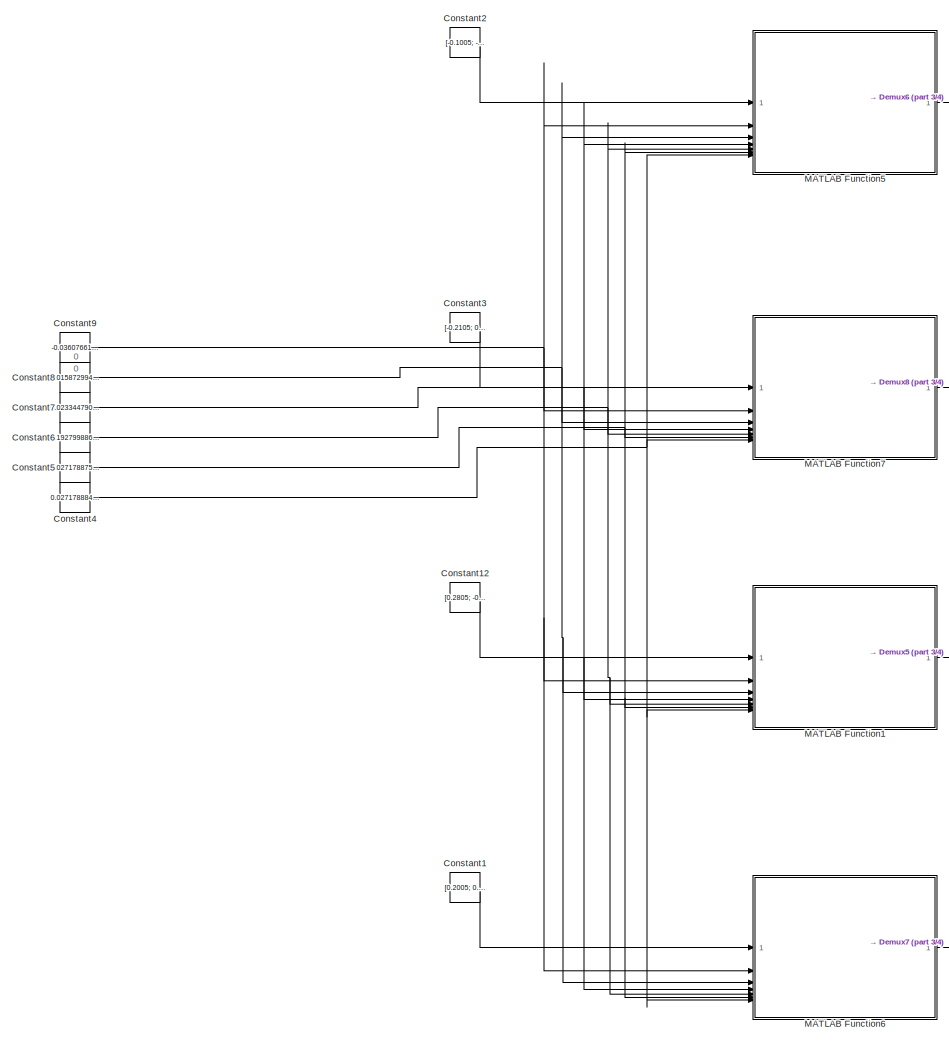
[diagram: root canvas - part 1/4, center side, full height]
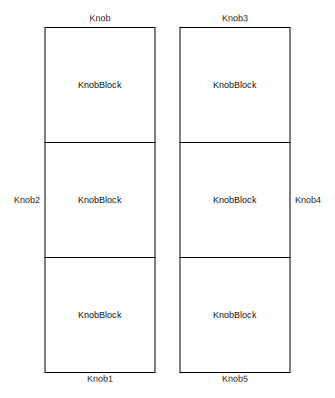
[diagram: root canvas - part 2/4, top left region]
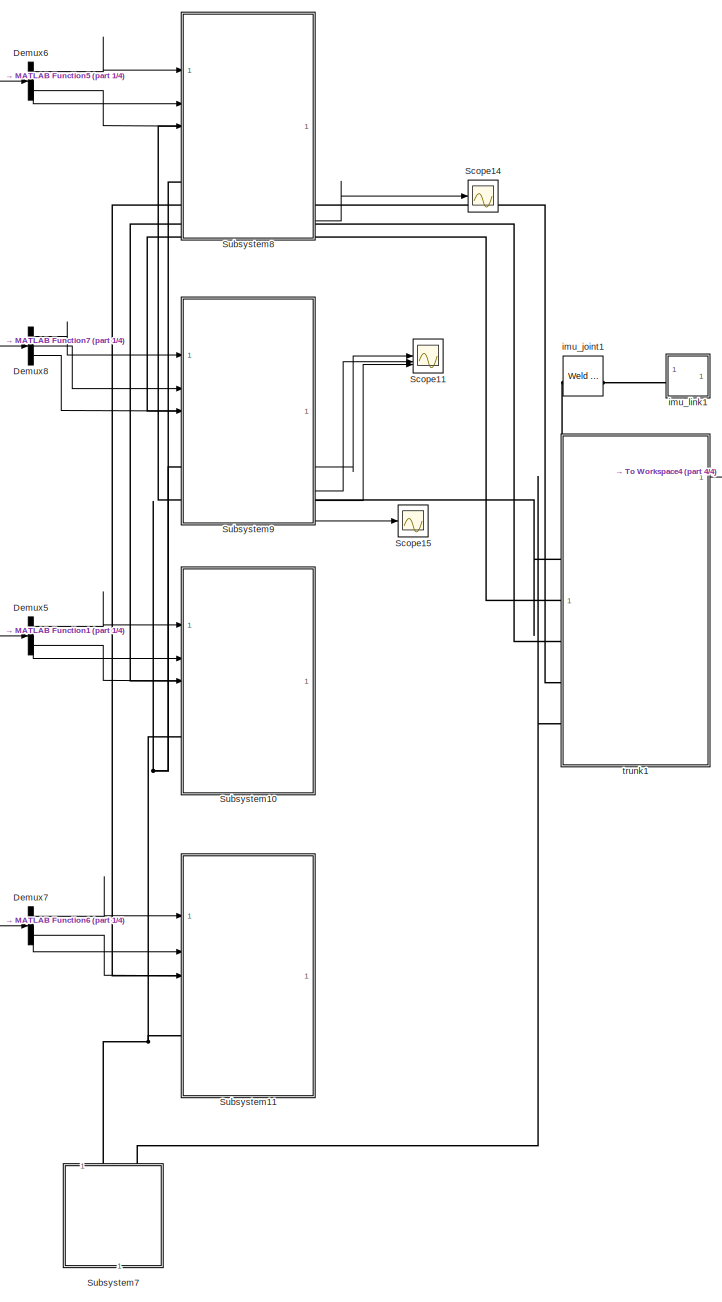
[diagram: root canvas - part 3/4, right side, full height]
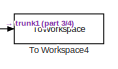
[diagram: root canvas - part 4/4, top right region]
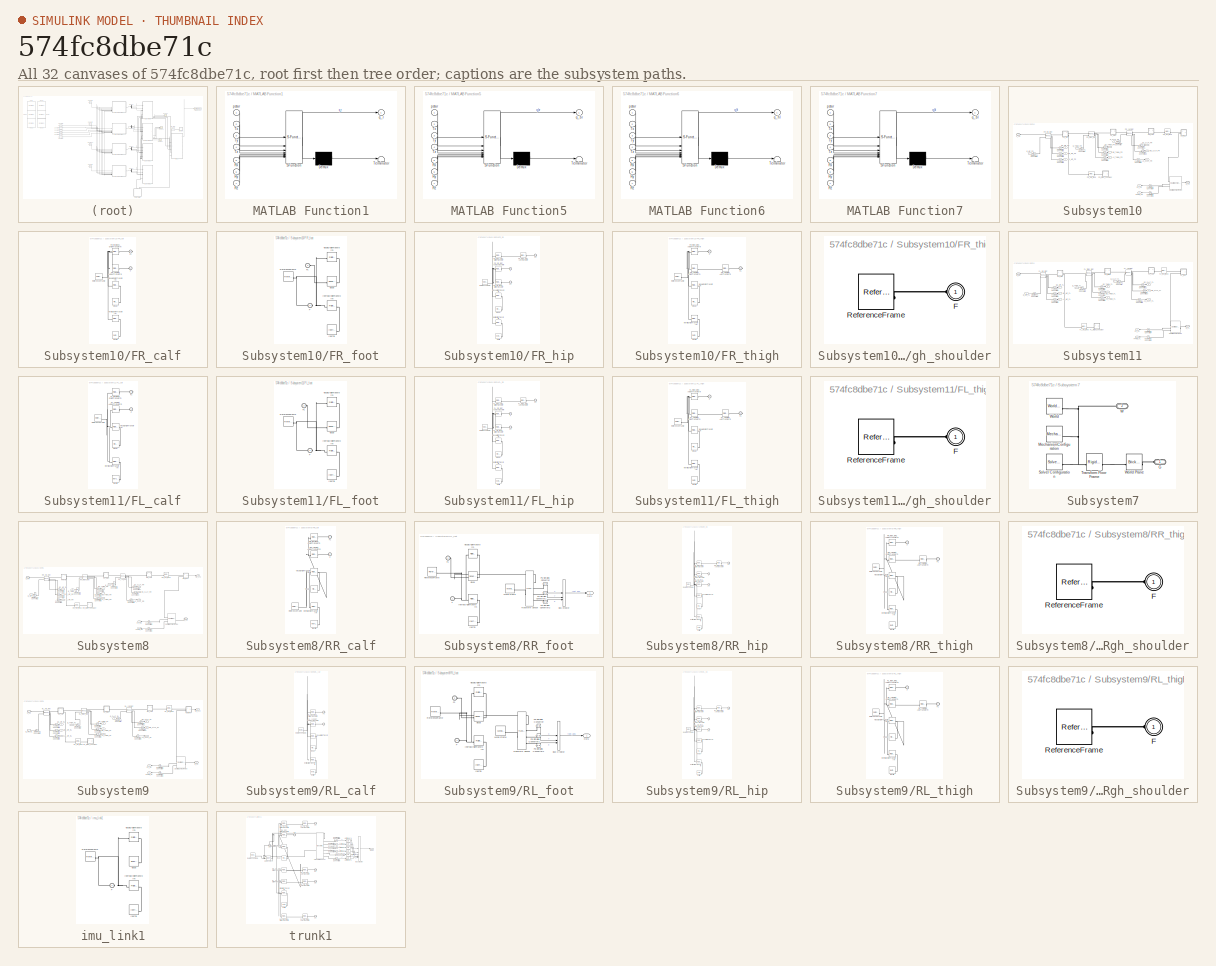
[diagram: thumbnail index - all 32 canvases of the model, root first then tree order]
MODEL slx_574fc8dbe71c
KIND model
CONFIG AbsTol = auto
CONFIG EnableMultiTasking = off
CONFIG FixedStep = auto
CONFIG MaxStep = auto
CONFIG MinStep = auto
CONFIG RelTol = 1e-3
CONFIG SampleTimeConstraint = Unconstrained
CONFIG SolverName = VariableStepAuto
CONFIG StartTime = 0.0
CONFIG StopTime = 70
BLOCK [Constant] Constant1
  Value = [0.2005; 0.1308; -0.25]
  VectorParams1D = off
BLOCK [Constant] Constant12
  Value = [0.2805; -0.1308; -0.21]
BLOCK [Constant] Constant2
  Value = [-0.1005; -0.1308; -0.25]
BLOCK [Constant] Constant3
  Value = [-0.2105; 0.1308; -0.25]
BLOCK [Constant] Constant4
  Value = 0.02717888441189587
BLOCK [Constant] Constant5
  Value = 0.02717887541876962
BLOCK [Constant] Constant6
  Value = 0.1927998860677071
BLOCK [Constant] Constant7
  Value = 0.02334479094166157
BLOCK [Constant] Constant8
  Value = 0.01587299492059251
BLOCK [Constant] Constant9
  NameLocation = top
  Value = -0.03607661952938862
BLOCK [Demux] Demux5
  Outputs = 3
BLOCK [Demux] Demux6
  Outputs = 3
BLOCK [Demux] Demux7
  Outputs = 3
BLOCK [Demux] Demux8
  Outputs = 3
BLOCK [KnobBlock] Knob
  ScaleMax = 0.15
  ScaleMin = -0.15
BLOCK [KnobBlock] Knob1
  ScaleMax = 0.1
  ScaleMin = -0.1
BLOCK [KnobBlock] Knob2
  ScaleMax = 0.08
  ScaleMin = -0.08
BLOCK [KnobBlock] Knob3
  ScaleMax = 20
  ScaleMin = -20
BLOCK [KnobBlock] Knob4
  ScaleMax = 20
  ScaleMin = -20
BLOCK [KnobBlock] Knob5
  ScaleMax = 20
  ScaleMin = -20
BLOCK [SubSystem] MATLAB Function1
  ErrorFcn = Stateflow.Translate.translate
  PermitHierarchicalResolution = ExplicitOnly
  SFBlockType = MATLAB Function
  TreatAsAtomicUnit = on
BLOCK [Demux] MATLAB Function1/ Demux 
  Outputs = 1
BLOCK [S-Function] MATLAB Function1/ SFunction 
  EnableBusSupport = on
  FunctionName = sf_sfun
  PortCounts = [7 2]
  SFcnIsStateOwnerBlock = off
  SFunctionDeploymentMode = off
  Tag = Stateflow S-Function 1
BLOCK [Terminator] MATLAB Function1/ Terminator 
BLOCK [Inport] MATLAB Function1/Rx
  Port = 5
BLOCK [Inport] MATLAB Function1/Ry
  Port = 6
BLOCK [Inport] MATLAB Function1/Rz
  Port = 7
BLOCK [Inport] MATLAB Function1/Tx
  Port = 2
BLOCK [Inport] MATLAB Function1/Ty
  Port = 3
BLOCK [Inport] MATLAB Function1/Tz
  Port = 4
BLOCK [Inport] MATLAB Function1/pstar
BLOCK [Outport] MATLAB Function1/q_r
BLOCK [SubSystem] MATLAB Function5
  ErrorFcn = Stateflow.Translate.translate
  PermitHierarchicalResolution = ExplicitOnly
  SFBlockType = MATLAB Function
  TreatAsAtomicUnit = on
BLOCK [Demux] MATLAB Function5/ Demux 
  Outputs = 1
BLOCK [S-Function] MATLAB Function5/ SFunction 
  EnableBusSupport = on
  FunctionName = sf_sfun
  PortCounts = [7 2]
  SFcnIsStateOwnerBlock = off
  SFunctionDeploymentMode = off
  Tag = Stateflow S-Function 7
BLOCK [Terminator] MATLAB Function5/ Terminator 
BLOCK [Inport] MATLAB Function5/Rx
  Port = 5
BLOCK [Inport] MATLAB Function5/Ry
  Port = 6
BLOCK [Inport] MATLAB Function5/Rz
  Port = 7
BLOCK [Inport] MATLAB Function5/Tx
  Port = 2
BLOCK [Inport] MATLAB Function5/Ty
  Port = 3
BLOCK [Inport] MATLAB Function5/Tz
  Port = 4
BLOCK [Inport] MATLAB Function5/pstar
BLOCK [Outport] MATLAB Function5/q_br
BLOCK [SubSystem] MATLAB Function6
  ErrorFcn = Stateflow.Translate.translate
  PermitHierarchicalResolution = ExplicitOnly
  SFBlockType = MATLAB Function
  TreatAsAtomicUnit = on
BLOCK [Demux] MATLAB Function6/ Demux 
  Outputs = 1
BLOCK [S-Function] MATLAB Function6/ SFunction 
  EnableBusSupport = on
  FunctionName = sf_sfun
  PortCounts = [7 2]
  SFcnIsStateOwnerBlock = off
  SFunctionDeploymentMode = off
  Tag = Stateflow S-Function 8
BLOCK [Terminator] MATLAB Function6/ Terminator 
BLOCK [Inport] MATLAB Function6/Rx
  Port = 5
BLOCK [Inport] MATLAB Function6/Ry
  Port = 6
BLOCK [Inport] MATLAB Function6/Rz
  Port = 7
BLOCK [Inport] MATLAB Function6/Tx
  Port = 2
BLOCK [Inport] MATLAB Function6/Ty
  Port = 3
BLOCK [Inport] MATLAB Function6/Tz
  Port = 4
BLOCK [Inport] MATLAB Function6/pstar
BLOCK [Outport] MATLAB Function6/q_hl
BLOCK [SubSystem] MATLAB Function7
  ErrorFcn = Stateflow.Translate.translate
  PermitHierarchicalResolution = ExplicitOnly
  SFBlockType = MATLAB Function
  TreatAsAtomicUnit = on
BLOCK [Demux] MATLAB Function7/ Demux 
  Outputs = 1
BLOCK [S-Function] MATLAB Function7/ SFunction 
  EnableBusSupport = on
  FunctionName = sf_sfun
  PortCounts = [7 2]
  SFcnIsStateOwnerBlock = off
  SFunctionDeploymentMode = off
  Tag = Stateflow S-Function 9
BLOCK [Terminator] MATLAB Function7/ Terminator 
BLOCK [Inport] MATLAB Function7/Rx
  Port = 5
BLOCK [Inport] MATLAB Function7/Ry
  Port = 6
BLOCK [Inport] MATLAB Function7/Rz
  Port = 7
BLOCK [Inport] MATLAB Function7/Tx
  Port = 2
BLOCK [Inport] MATLAB Function7/Ty
  Port = 3
BLOCK [Inport] MATLAB Function7/Tz
  Port = 4
BLOCK [Inport] MATLAB Function7/pstar
BLOCK [Outport] MATLAB Function7/q_bl
BLOCK [Scope] Scope11
  Floating = off
  NumInputPorts = 3
  ScopeSpecificationString = Simulink.scopes.TimeScopeBlockCfg('CurrentConfiguration', extmgr.ConfigurationSet(extmgr.Configuration('Core','General UI',true),extmgr.Configuration('Core','Source UI',true),extmgr.Configuration('Sources','WiredSimulink',true,'DataLoggingVariableName','ScopeData3'),extmgr.Configuration('Visuals','Time Domain',true,'SerializedDisplays',{struct('MinYLimReal','-2.34836','MaxYLimReal','1.38766','YLab...<+1764ch>
BLOCK [Scope] Scope14
  Floating = off
  NumInputPorts = 1
  ScopeSpecificationString = Simulink.scopes.TimeScopeBlockCfg('CurrentConfiguration', extmgr.ConfigurationSet(extmgr.Configuration('Core','General UI',true),extmgr.Configuration('Core','Source UI',true),extmgr.Configuration('Sources','WiredSimulink',true,'DataLoggingVariableName','ScopeData6'),extmgr.Configuration('Visuals','Time Domain',true,'SerializedDisplays',{struct('MinYLimReal','-0.0269','MaxYLimReal','0.06152','YLabe...<+1472ch>
BLOCK [Scope] Scope15
  Floating = off
  NumInputPorts = 1
  ScopeSpecificationString = Simulink.scopes.TimeScopeBlockCfg('CurrentConfiguration', extmgr.ConfigurationSet(extmgr.Configuration('Core','General UI',true),extmgr.Configuration('Core','Source UI',true),extmgr.Configuration('Sources','WiredSimulink',true,'DataLoggingVariableName','ScopeData7'),extmgr.Configuration('Visuals','Time Domain',true,'SerializedDisplays',{struct('MinYLimReal','-0.01623','MaxYLimReal','0.03678','YLab...<+1477ch>
BLOCK [SubSystem] Subsystem10
BLOCK [Outport] Subsystem10/AS_CALF_FR
  Port = 11
BLOCK [Outport] Subsystem10/AS_HIP_FR
  Port = 5
BLOCK [Outport] Subsystem10/AS_THIGH_FR
  Port = 8
BLOCK [PMIOPort] Subsystem10/C_FR
  Side = Left
BLOCK [Outport] Subsystem10/FFRM_FR
  NameLocation = top
  Port = 2
BLOCK [SubSystem] Subsystem10/FR_calf
BLOCK [PMIOPort] Subsystem10/FR_calf/F
  Side = Left
BLOCK [PMIOPort] Subsystem10/FR_calf/F1
  Port = 2
  Side = Right
BLOCK [Reference] Subsystem10/FR_calf/FR_calf_joint_AxisInvTransform  REF=sm_lib/Frames and
Transforms/Rigid
Transform
  SourceBlock = sm_lib/Frames and\nTransforms/Rigid\nTransform
  SourceType = Rigid\nTransform
BLOCK [Reference] Subsystem10/FR_calf/FR_foot_fixed_OriginTransform  REF=sm_lib/Frames and
Transforms/Rigid
Transform
  SourceBlock = sm_lib/Frames and\nTransforms/Rigid\nTransform
  SourceType = Rigid\nTransform
BLOCK [Reference] Subsystem10/FR_calf/Inertia  REF=sm_lib/Body Elements/Inertia
  SourceBlock = sm_lib/Body Elements/Inertia
  SourceType = Inertia
BLOCK [Reference] Subsystem10/FR_calf/InertiaOriginTransform  REF=sm_lib/Frames and
Transforms/Rigid
Transform
  SourceBlock = sm_lib/Frames and\nTransforms/Rigid\nTransform
  SourceType = Rigid\nTransform
BLOCK [Reference] Subsystem10/FR_calf/ReferenceFrame  REF=sm_lib/Frames and
Transforms/Reference
Frame
  SourceBlock = sm_lib/Frames and\nTransforms/Reference\nFrame
  SourceType = Reference\nFrame
BLOCK [Reference] Subsystem10/FR_calf/Visual  REF=sm_lib/Body Elements/File Solid
  SourceBlock = sm_lib/Body Elements/File Solid
  SourceType = File Solid
BLOCK [Reference] Subsystem10/FR_calf/VisualOriginTransform  REF=sm_lib/Frames and
Transforms/Rigid
Transform
  SourceBlock = sm_lib/Frames and\nTransforms/Rigid\nTransform
  SourceType = Rigid\nTransform
BLOCK [Reference] Subsystem10/FR_calf_joint  REF=sm_lib/Joints/Revolute Joint
  SourceBlock = sm_lib/Joints/Revolute Joint
  SourceType = Revolute Joint
BLOCK [SubSystem] Subsystem10/FR_foot
BLOCK [PMIOPort] Subsystem10/FR_foot/F
  Side = Left
BLOCK [PMIOPort] Subsystem10/FR_foot/F1
  Port = 2
  Side = Left
BLOCK [Reference] Subsystem10/FR_foot/Inertia  REF=sm_lib/Body Elements/Inertia
  SourceBlock = sm_lib/Body Elements/Inertia
  SourceType = Inertia
BLOCK [Reference] Subsystem10/FR_foot/InertiaOriginTransform  REF=sm_lib/Frames and
Transforms/Rigid
Transform
  SourceBlock = sm_lib/Frames and\nTransforms/Rigid\nTransform
  SourceType = Rigid\nTransform
BLOCK [Reference] Subsystem10/FR_foot/ReferenceFrame  REF=sm_lib/Frames and
Transforms/Reference
Frame
  SourceBlock = sm_lib/Frames and\nTransforms/Reference\nFrame
  SourceType = Reference\nFrame
BLOCK [Reference] Subsystem10/FR_foot/Visual  REF=sm_lib/Body Elements/Spherical Solid
  SourceBlock = sm_lib/Body Elements/Spherical Solid
  SourceType = Spherical Solid
BLOCK [Reference] Subsystem10/FR_foot/VisualOriginTransform  REF=sm_lib/Frames and
Transforms/Rigid
Transform
  SourceBlock = sm_lib/Frames and\nTransforms/Rigid\nTransform
  SourceType = Rigid\nTransform
BLOCK [Reference] Subsystem10/FR_foot_fixed  REF=sm_lib/Joints/Weld Joint
  SourceBlock = sm_lib/Joints/Weld Joint
  SourceType = Weld Joint
BLOCK [SubSystem] Subsystem10/FR_hip
BLOCK [PMIOPort] Subsystem10/FR_hip/F
  Side = Left
BLOCK [PMIOPort] Subsystem10/FR_hip/F1
  Port = 3
  Side = Right
BLOCK [PMIOPort] Subsystem10/FR_hip/F2
  Port = 2
  Side = Right
BLOCK [Reference] Subsystem10/FR_hip/FR_hip_fixed_OriginTransform  REF=sm_lib/Frames and
Transforms/Rigid
Transform
  SourceBlock = sm_lib/Frames and\nTransforms/Rigid\nTransform
  SourceType = Rigid\nTransform
BLOCK [Reference] Subsystem10/FR_hip/FR_hip_joint_AxisInvTransform  REF=sm_lib/Frames and
Transforms/Rigid
Transform
  SourceBlock = sm_lib/Frames and\nTransforms/Rigid\nTransform
  SourceType = Rigid\nTransform
BLOCK [Reference] Subsystem10/FR_hip/FR_thigh_joint_AxisTransform  REF=sm_lib/Frames and
Transforms/Rigid
Transform
  SourceBlock = sm_lib/Frames and\nTransforms/Rigid\nTransform
  SourceType = Rigid\nTransform
BLOCK [Reference] Subsystem10/FR_hip/FR_thigh_joint_OriginTransform  REF=sm_lib/Frames and
Transforms/Rigid
Transform
  SourceBlock = sm_lib/Frames and\nTransforms/Rigid\nTransform
  SourceType = Rigid\nTransform
BLOCK [Reference] Subsystem10/FR_hip/Inertia  REF=sm_lib/Body Elements/Inertia
  SourceBlock = sm_lib/Body Elements/Inertia
  SourceType = Inertia
BLOCK [Reference] Subsystem10/FR_hip/InertiaOriginTransform  REF=sm_lib/Frames and
Transforms/Rigid
Transform
  SourceBlock = sm_lib/Frames and\nTransforms/Rigid\nTransform
  SourceType = Rigid\nTransform
BLOCK [Reference] Subsystem10/FR_hip/ReferenceFrame  REF=sm_lib/Frames and
Transforms/Reference
Frame
  SourceBlock = sm_lib/Frames and\nTransforms/Reference\nFrame
  SourceType = Reference\nFrame
BLOCK [Reference] Subsystem10/FR_hip/Visual  REF=sm_lib/Body Elements/File Solid
  SourceBlock = sm_lib/Body Elements/File Solid
  SourceType = File Solid
BLOCK [Reference] Subsystem10/FR_hip/VisualOriginTransform  REF=sm_lib/Frames and
Transforms/Rigid
Transform
  SourceBlock = sm_lib/Frames and\nTransforms/Rigid\nTransform
  SourceType = Rigid\nTransform
BLOCK [Reference] Subsystem10/FR_hip_fixed  REF=sm_lib/Joints/Weld Joint
  SourceBlock = sm_lib/Joints/Weld Joint
  SourceType = Weld Joint
BLOCK [Reference] Subsystem10/FR_hip_joint  REF=sm_lib/Joints/Revolute Joint
  SourceBlock = sm_lib/Joints/Revolute Joint
  SourceType = Revolute Joint
BLOCK [SubSystem] Subsystem10/FR_thigh
BLOCK [PMIOPort] Subsystem10/FR_thigh/F
  Side = Left
BLOCK [PMIOPort] Subsystem10/FR_thigh/F1
  Port = 2
  Side = Right
BLOCK [Reference] Subsystem10/FR_thigh/FR_calf_joint_AxisTransform  REF=sm_lib/Frames and
Transforms/Rigid
Transform
  SourceBlock = sm_lib/Frames and\nTransforms/Rigid\nTransform
  SourceType = Rigid\nTransform
BLOCK [Reference] Subsystem10/FR_thigh/FR_calf_joint_OriginTransform  REF=sm_lib/Frames and
Transforms/Rigid
Transform
  SourceBlock = sm_lib/Frames and\nTransforms/Rigid\nTransform
  SourceType = Rigid\nTransform
BLOCK [Reference] Subsystem10/FR_thigh/FR_thigh_joint_AxisInvTransform  REF=sm_lib/Frames and
Transforms/Rigid
Transform
  SourceBlock = sm_lib/Frames and\nTransforms/Rigid\nTransform
  SourceType = Rigid\nTransform
BLOCK [Reference] Subsystem10/FR_thigh/Inertia  REF=sm_lib/Body Elements/Inertia
  SourceBlock = sm_lib/Body Elements/Inertia
  SourceType = Inertia
BLOCK [Reference] Subsystem10/FR_thigh/InertiaOriginTransform  REF=sm_lib/Frames and
Transforms/Rigid
Transform
  SourceBlock = sm_lib/Frames and\nTransforms/Rigid\nTransform
  SourceType = Rigid\nTransform
BLOCK [Reference] Subsystem10/FR_thigh/ReferenceFrame  REF=sm_lib/Frames and
Transforms/Reference
Frame
  SourceBlock = sm_lib/Frames and\nTransforms/Reference\nFrame
  SourceType = Reference\nFrame
BLOCK [Reference] Subsystem10/FR_thigh/Visual  REF=sm_lib/Body Elements/File Solid
  SourceBlock = sm_lib/Body Elements/File Solid
  SourceType = File Solid
BLOCK [Reference] Subsystem10/FR_thigh/VisualOriginTransform  REF=sm_lib/Frames and
Transforms/Rigid
Transform
  SourceBlock = sm_lib/Frames and\nTransforms/Rigid\nTransform
  SourceType = Rigid\nTransform
BLOCK [Reference] Subsystem10/FR_thigh_joint  REF=sm_lib/Joints/Revolute Joint
  SourceBlock = sm_lib/Joints/Revolute Joint
  SourceType = Revolute Joint
BLOCK [SubSystem] Subsystem10/FR_thigh_shoulder
BLOCK [PMIOPort] Subsystem10/FR_thigh_shoulder/F
  Side = Left
BLOCK [Reference] Subsystem10/FR_thigh_shoulder/ReferenceFrame  REF=sm_lib/Frames and
Transforms/Reference
Frame
  SourceBlock = sm_lib/Frames and\nTransforms/Reference\nFrame
  SourceType = Reference\nFrame
BLOCK [Outport] Subsystem10/Fn_FR
  NameLocation = top
BLOCK [PMIOPort] Subsystem10/G_FR
  NameLocation = top
  Port = 2
  Side = Left
BLOCK [Reference] Subsystem10/PS-Simulink Converter1  REF=nesl_utility/PS-Simulink
Converter
  NameLocation = top
  SourceBlock = nesl_utility/PS-Simulink\nConverter
  SourceType = PS-Simulink\nConverter
BLOCK [Reference] Subsystem10/PS-Simulink Converter10  REF=nesl_utility/PS-Simulink
Converter
  SourceBlock = nesl_utility/PS-Simulink\nConverter
  SourceType = PS-Simulink\nConverter
BLOCK [Reference] Subsystem10/PS-Simulink Converter11  REF=nesl_utility/PS-Simulink
Converter
  SourceBlock = nesl_utility/PS-Simulink\nConverter
  SourceType = PS-Simulink\nConverter
BLOCK [Reference] Subsystem10/PS-Simulink Converter2  REF=nesl_utility/PS-Simulink
Converter
  SourceBlock = nesl_utility/PS-Simulink\nConverter
  SourceType = PS-Simulink\nConverter
BLOCK [Reference] Subsystem10/PS-Simulink Converter3  REF=nesl_utility/PS-Simulink
Converter
  SourceBlock = nesl_utility/PS-Simulink\nConverter
  SourceType = PS-Simulink\nConverter
BLOCK [Reference] Subsystem10/PS-Simulink Converter4  REF=nesl_utility/PS-Simulink
Converter
  SourceBlock = nesl_utility/PS-Simulink\nConverter
  SourceType = PS-Simulink\nConverter
BLOCK [Reference] Subsystem10/PS-Simulink Converter5  REF=nesl_utility/PS-Simulink
Converter
  SourceBlock = nesl_utility/PS-Simulink\nConverter
  SourceType = PS-Simulink\nConverter
BLOCK [Reference] Subsystem10/PS-Simulink Converter6  REF=nesl_utility/PS-Simulink
Converter
  SourceBlock = nesl_utility/PS-Simulink\nConverter
  SourceType = PS-Simulink\nConverter
BLOCK [Reference] Subsystem10/PS-Simulink Converter7  REF=nesl_utility/PS-Simulink
Converter
  NameLocation = top
  SourceBlock = nesl_utility/PS-Simulink\nConverter
  SourceType = PS-Simulink\nConverter
BLOCK [Reference] Subsystem10/PS-Simulink Converter8  REF=nesl_utility/PS-Simulink
Converter
  SourceBlock = nesl_utility/PS-Simulink\nConverter
  SourceType = PS-Simulink\nConverter
BLOCK [Reference] Subsystem10/PS-Simulink Converter9  REF=nesl_utility/PS-Simulink
Converter
  SourceBlock = nesl_utility/PS-Simulink\nConverter
  SourceType = PS-Simulink\nConverter
BLOCK [Outport] Subsystem10/QS_CALF_FR
  Port = 9
BLOCK [Outport] Subsystem10/QS_HIP_FR
  Port = 3
BLOCK [Outport] Subsystem10/QS_THIGH_FR
  Port = 6
BLOCK [Inport] Subsystem10/Q_CALF_FR
  Port = 3
BLOCK [Inport] Subsystem10/Q_HIP_FR
BLOCK [Inport] Subsystem10/Q_THIGH_FR
  Port = 2
BLOCK [Reference] Subsystem10/Simulink-PS Converter  REF=nesl_utility/Simulink-PS
Converter
  SourceBlock = nesl_utility/Simulink-PS\nConverter
  SourceType = Simulink-PS\nConverter
BLOCK [Reference] Subsystem10/Simulink-PS Converter1  REF=nesl_utility/Simulink-PS
Converter
  SourceBlock = nesl_utility/Simulink-PS\nConverter
  SourceType = Simulink-PS\nConverter
BLOCK [Reference] Subsystem10/Simulink-PS Converter2  REF=nesl_utility/Simulink-PS
Converter
  SourceBlock = nesl_utility/Simulink-PS\nConverter
  SourceType = Simulink-PS\nConverter
BLOCK [Reference] Subsystem10/Spatial Contact Force  REF=sm_lib/Forces and
Torques/Spatial
Contact Force
  NameLocation = top
  SourceBlock = sm_lib/Forces and\nTorques/Spatial\nContact Force
  SourceType = Spatial\nContact Force
BLOCK [Outport] Subsystem10/WS_CALF_FR
  Port = 10
BLOCK [Outport] Subsystem10/WS_HIP_FR
  Port = 4
BLOCK [Outport] Subsystem10/WS_THIGH_FR
  Port = 7
BLOCK [SubSystem] Subsystem11
BLOCK [Outport] Subsystem11/AS_CALF_FL
  Port = 11
BLOCK [Outport] Subsystem11/AS_HIP_FL
  Port = 5
BLOCK [Outport] Subsystem11/AS_THIGH_FL
  Port = 8
BLOCK [PMIOPort] Subsystem11/C_FL
  Side = Left
BLOCK [Outport] Subsystem11/FFRM_FL
  NameLocation = top
  Port = 2
BLOCK [SubSystem] Subsystem11/FL_calf
BLOCK [PMIOPort] Subsystem11/FL_calf/F
  Side = Left
BLOCK [PMIOPort] Subsystem11/FL_calf/F1
  Port = 2
  Side = Right
BLOCK [Reference] Subsystem11/FL_calf/FL_calf_joint_AxisInvTransform  REF=sm_lib/Frames and
Transforms/Rigid
Transform
  SourceBlock = sm_lib/Frames and\nTransforms/Rigid\nTransform
  SourceType = Rigid\nTransform
BLOCK [Reference] Subsystem11/FL_calf/FL_foot_fixed_OriginTransform  REF=sm_lib/Frames and
Transforms/Rigid
Transform
  SourceBlock = sm_lib/Frames and\nTransforms/Rigid\nTransform
  SourceType = Rigid\nTransform
BLOCK [Reference] Subsystem11/FL_calf/Inertia  REF=sm_lib/Body Elements/Inertia
  SourceBlock = sm_lib/Body Elements/Inertia
  SourceType = Inertia
BLOCK [Reference] Subsystem11/FL_calf/InertiaOriginTransform  REF=sm_lib/Frames and
Transforms/Rigid
Transform
  SourceBlock = sm_lib/Frames and\nTransforms/Rigid\nTransform
  SourceType = Rigid\nTransform
BLOCK [Reference] Subsystem11/FL_calf/ReferenceFrame  REF=sm_lib/Frames and
Transforms/Reference
Frame
  SourceBlock = sm_lib/Frames and\nTransforms/Reference\nFrame
  SourceType = Reference\nFrame
BLOCK [Reference] Subsystem11/FL_calf/Visual  REF=sm_lib/Body Elements/File Solid
  SourceBlock = sm_lib/Body Elements/File Solid
  SourceType = File Solid
BLOCK [Reference] Subsystem11/FL_calf/VisualOriginTransform  REF=sm_lib/Frames and
Transforms/Rigid
Transform
  SourceBlock = sm_lib/Frames and\nTransforms/Rigid\nTransform
  SourceType = Rigid\nTransform
BLOCK [Reference] Subsystem11/FL_calf_joint  REF=sm_lib/Joints/Revolute Joint
  SourceBlock = sm_lib/Joints/Revolute Joint
  SourceType = Revolute Joint
BLOCK [SubSystem] Subsystem11/FL_foot
BLOCK [PMIOPort] Subsystem11/FL_foot/F
  Side = Left
BLOCK [PMIOPort] Subsystem11/FL_foot/F1
  Port = 2
  Side = Left
BLOCK [Reference] Subsystem11/FL_foot/Inertia  REF=sm_lib/Body Elements/Inertia
  SourceBlock = sm_lib/Body Elements/Inertia
  SourceType = Inertia
BLOCK [Reference] Subsystem11/FL_foot/InertiaOriginTransform  REF=sm_lib/Frames and
Transforms/Rigid
Transform
  SourceBlock = sm_lib/Frames and\nTransforms/Rigid\nTransform
  SourceType = Rigid\nTransform
BLOCK [Reference] Subsystem11/FL_foot/ReferenceFrame  REF=sm_lib/Frames and
Transforms/Reference
Frame
  SourceBlock = sm_lib/Frames and\nTransforms/Reference\nFrame
  SourceType = Reference\nFrame
BLOCK [Reference] Subsystem11/FL_foot/Visual  REF=sm_lib/Body Elements/Spherical Solid
  SourceBlock = sm_lib/Body Elements/Spherical Solid
  SourceType = Spherical Solid
BLOCK [Reference] Subsystem11/FL_foot/VisualOriginTransform  REF=sm_lib/Frames and
Transforms/Rigid
Transform
  SourceBlock = sm_lib/Frames and\nTransforms/Rigid\nTransform
  SourceType = Rigid\nTransform
BLOCK [Reference] Subsystem11/FL_foot_fixed  REF=sm_lib/Joints/Weld Joint
  SourceBlock = sm_lib/Joints/Weld Joint
  SourceType = Weld Joint
BLOCK [SubSystem] Subsystem11/FL_hip
BLOCK [PMIOPort] Subsystem11/FL_hip/F
  Side = Left
BLOCK [PMIOPort] Subsystem11/FL_hip/F1
  Port = 3
  Side = Right
BLOCK [PMIOPort] Subsystem11/FL_hip/F2
  Port = 2
  Side = Right
BLOCK [Reference] Subsystem11/FL_hip/FL_hip_fixed_OriginTransform  REF=sm_lib/Frames and
Transforms/Rigid
Transform
  SourceBlock = sm_lib/Frames and\nTransforms/Rigid\nTransform
  SourceType = Rigid\nTransform
BLOCK [Reference] Subsystem11/FL_hip/FL_hip_joint_AxisInvTransform  REF=sm_lib/Frames and
Transforms/Rigid
Transform
  SourceBlock = sm_lib/Frames and\nTransforms/Rigid\nTransform
  SourceType = Rigid\nTransform
BLOCK [Reference] Subsystem11/FL_hip/FL_thigh_joint_AxisTransform  REF=sm_lib/Frames and
Transforms/Rigid
Transform
  SourceBlock = sm_lib/Frames and\nTransforms/Rigid\nTransform
  SourceType = Rigid\nTransform
BLOCK [Reference] Subsystem11/FL_hip/FL_thigh_joint_OriginTransform  REF=sm_lib/Frames and
Transforms/Rigid
Transform
  SourceBlock = sm_lib/Frames and\nTransforms/Rigid\nTransform
  SourceType = Rigid\nTransform
BLOCK [Reference] Subsystem11/FL_hip/Inertia  REF=sm_lib/Body Elements/Inertia
  SourceBlock = sm_lib/Body Elements/Inertia
  SourceType = Inertia
BLOCK [Reference] Subsystem11/FL_hip/InertiaOriginTransform  REF=sm_lib/Frames and
Transforms/Rigid
Transform
  SourceBlock = sm_lib/Frames and\nTransforms/Rigid\nTransform
  SourceType = Rigid\nTransform
BLOCK [Reference] Subsystem11/FL_hip/ReferenceFrame  REF=sm_lib/Frames and
Transforms/Reference
Frame
  SourceBlock = sm_lib/Frames and\nTransforms/Reference\nFrame
  SourceType = Reference\nFrame
BLOCK [Reference] Subsystem11/FL_hip/Visual  REF=sm_lib/Body Elements/File Solid
  SourceBlock = sm_lib/Body Elements/File Solid
  SourceType = File Solid
BLOCK [Reference] Subsystem11/FL_hip/VisualOriginTransform  REF=sm_lib/Frames and
Transforms/Rigid
Transform
  SourceBlock = sm_lib/Frames and\nTransforms/Rigid\nTransform
  SourceType = Rigid\nTransform
BLOCK [Reference] Subsystem11/FL_hip_fixed  REF=sm_lib/Joints/Weld Joint
  SourceBlock = sm_lib/Joints/Weld Joint
  SourceType = Weld Joint
BLOCK [Reference] Subsystem11/FL_hip_joint  REF=sm_lib/Joints/Revolute Joint
  SourceBlock = sm_lib/Joints/Revolute Joint
  SourceType = Revolute Joint
BLOCK [SubSystem] Subsystem11/FL_thigh
BLOCK [PMIOPort] Subsystem11/FL_thigh/F
  Side = Left
BLOCK [PMIOPort] Subsystem11/FL_thigh/F1
  Port = 2
  Side = Right
BLOCK [Reference] Subsystem11/FL_thigh/FL_calf_joint_AxisTransform  REF=sm_lib/Frames and
Transforms/Rigid
Transform
  SourceBlock = sm_lib/Frames and\nTransforms/Rigid\nTransform
  SourceType = Rigid\nTransform
BLOCK [Reference] Subsystem11/FL_thigh/FL_calf_joint_OriginTransform  REF=sm_lib/Frames and
Transforms/Rigid
Transform
  SourceBlock = sm_lib/Frames and\nTransforms/Rigid\nTransform
  SourceType = Rigid\nTransform
BLOCK [Reference] Subsystem11/FL_thigh/FL_thigh_joint_AxisInvTransform  REF=sm_lib/Frames and
Transforms/Rigid
Transform
  SourceBlock = sm_lib/Frames and\nTransforms/Rigid\nTransform
  SourceType = Rigid\nTransform
BLOCK [Reference] Subsystem11/FL_thigh/Inertia  REF=sm_lib/Body Elements/Inertia
  SourceBlock = sm_lib/Body Elements/Inertia
  SourceType = Inertia
BLOCK [Reference] Subsystem11/FL_thigh/InertiaOriginTransform  REF=sm_lib/Frames and
Transforms/Rigid
Transform
  SourceBlock = sm_lib/Frames and\nTransforms/Rigid\nTransform
  SourceType = Rigid\nTransform
BLOCK [Reference] Subsystem11/FL_thigh/ReferenceFrame  REF=sm_lib/Frames and
Transforms/Reference
Frame
  SourceBlock = sm_lib/Frames and\nTransforms/Reference\nFrame
  SourceType = Reference\nFrame
BLOCK [Reference] Subsystem11/FL_thigh/Visual  REF=sm_lib/Body Elements/File Solid
  SourceBlock = sm_lib/Body Elements/File Solid
  SourceType = File Solid
BLOCK [Reference] Subsystem11/FL_thigh/VisualOriginTransform  REF=sm_lib/Frames and
Transforms/Rigid
Transform
  SourceBlock = sm_lib/Frames and\nTransforms/Rigid\nTransform
  SourceType = Rigid\nTransform
BLOCK [Reference] Subsystem11/FL_thigh_joint  REF=sm_lib/Joints/Revolute Joint
  SourceBlock = sm_lib/Joints/Revolute Joint
  SourceType = Revolute Joint
BLOCK [SubSystem] Subsystem11/FL_thigh_shoulder
BLOCK [PMIOPort] Subsystem11/FL_thigh_shoulder/F
  Side = Left
BLOCK [Reference] Subsystem11/FL_thigh_shoulder/ReferenceFrame  REF=sm_lib/Frames and
Transforms/Reference
Frame
  SourceBlock = sm_lib/Frames and\nTransforms/Reference\nFrame
  SourceType = Reference\nFrame
BLOCK [Outport] Subsystem11/Fn_FL
  NameLocation = top
BLOCK [PMIOPort] Subsystem11/G_FL
  NameLocation = top
  Port = 2
  Side = Left
BLOCK [Reference] Subsystem11/PS-Simulink Converter1  REF=nesl_utility/PS-Simulink
Converter
  NameLocation = top
  SourceBlock = nesl_utility/PS-Simulink\nConverter
  SourceType = PS-Simulink\nConverter
BLOCK [Reference] Subsystem11/PS-Simulink Converter10  REF=nesl_utility/PS-Simulink
Converter
  SourceBlock = nesl_utility/PS-Simulink\nConverter
  SourceType = PS-Simulink\nConverter
BLOCK [Reference] Subsystem11/PS-Simulink Converter11  REF=nesl_utility/PS-Simulink
Converter
  SourceBlock = nesl_utility/PS-Simulink\nConverter
  SourceType = PS-Simulink\nConverter
BLOCK [Reference] Subsystem11/PS-Simulink Converter2  REF=nesl_utility/PS-Simulink
Converter
  SourceBlock = nesl_utility/PS-Simulink\nConverter
  SourceType = PS-Simulink\nConverter
BLOCK [Reference] Subsystem11/PS-Simulink Converter3  REF=nesl_utility/PS-Simulink
Converter
  SourceBlock = nesl_utility/PS-Simulink\nConverter
  SourceType = PS-Simulink\nConverter
BLOCK [Reference] Subsystem11/PS-Simulink Converter4  REF=nesl_utility/PS-Simulink
Converter
  SourceBlock = nesl_utility/PS-Simulink\nConverter
  SourceType = PS-Simulink\nConverter
BLOCK [Reference] Subsystem11/PS-Simulink Converter5  REF=nesl_utility/PS-Simulink
Converter
  SourceBlock = nesl_utility/PS-Simulink\nConverter
  SourceType = PS-Simulink\nConverter
BLOCK [Reference] Subsystem11/PS-Simulink Converter6  REF=nesl_utility/PS-Simulink
Converter
  SourceBlock = nesl_utility/PS-Simulink\nConverter
  SourceType = PS-Simulink\nConverter
BLOCK [Reference] Subsystem11/PS-Simulink Converter7  REF=nesl_utility/PS-Simulink
Converter
  NameLocation = top
  SourceBlock = nesl_utility/PS-Simulink\nConverter
  SourceType = PS-Simulink\nConverter
BLOCK [Reference] Subsystem11/PS-Simulink Converter8  REF=nesl_utility/PS-Simulink
Converter
  SourceBlock = nesl_utility/PS-Simulink\nConverter
  SourceType = PS-Simulink\nConverter
BLOCK [Reference] Subsystem11/PS-Simulink Converter9  REF=nesl_utility/PS-Simulink
Converter
  SourceBlock = nesl_utility/PS-Simulink\nConverter
  SourceType = PS-Simulink\nConverter
BLOCK [Outport] Subsystem11/QS_CALF_FL
  Port = 9
BLOCK [Outport] Subsystem11/QS_HIP_FL
  Port = 3
BLOCK [Outport] Subsystem11/QS_THIGH_FL
  Port = 6
BLOCK [Inport] Subsystem11/Q_CALF_FL
  Port = 3
BLOCK [Inport] Subsystem11/Q_HIP_FL
BLOCK [Inport] Subsystem11/Q_THIGH_FL
  Port = 2
BLOCK [Reference] Subsystem11/Simulink-PS Converter  REF=nesl_utility/Simulink-PS
Converter
  SourceBlock = nesl_utility/Simulink-PS\nConverter
  SourceType = Simulink-PS\nConverter
BLOCK [Reference] Subsystem11/Simulink-PS Converter1  REF=nesl_utility/Simulink-PS
Converter
  SourceBlock = nesl_utility/Simulink-PS\nConverter
  SourceType = Simulink-PS\nConverter
BLOCK [Reference] Subsystem11/Simulink-PS Converter2  REF=nesl_utility/Simulink-PS
Converter
  SourceBlock = nesl_utility/Simulink-PS\nConverter
  SourceType = Simulink-PS\nConverter
BLOCK [Reference] Subsystem11/Spatial Contact Force  REF=sm_lib/Forces and
Torques/Spatial
Contact Force
  NameLocation = top
  SourceBlock = sm_lib/Forces and\nTorques/Spatial\nContact Force
  SourceType = Spatial\nContact Force
BLOCK [Outport] Subsystem11/WS_CALF_FL
  Port = 10
BLOCK [Outport] Subsystem11/WS_HIP_FL
  Port = 4
BLOCK [Outport] Subsystem11/WS_THIGH_FL
  Port = 7
BLOCK [SubSystem] Subsystem7
  NameLocation = left
BLOCK [PMIOPort] Subsystem7/G
  Side = Left
BLOCK [Reference] Subsystem7/MechanismConfiguration  REF=sm_lib/Utilities/Mechanism
Configuration
  SourceBlock = sm_lib/Utilities/Mechanism\nConfiguration
  SourceType = Mechanism\nConfiguration
BLOCK [Reference] Subsystem7/Solver Configuration  REF=nesl_utility/Solver
Configuration
  SourceBlock = nesl_utility/Solver\nConfiguration
  SourceType = Solver\nConfiguration
BLOCK [Reference] Subsystem7/Transform Floor Frame  REF=sm_lib/Frames and
Transforms/Rigid
Transform
  NameLocation = top
  SourceBlock = sm_lib/Frames and\nTransforms/Rigid\nTransform
  SourceType = Rigid\nTransform
BLOCK [PMIOPort] Subsystem7/W
  Port = 2
  Side = Left
BLOCK [Reference] Subsystem7/World  REF=sm_lib/Frames and
Transforms/World Frame
  SourceBlock = sm_lib/Frames and\nTransforms/World Frame
  SourceType = World Frame
BLOCK [Reference] Subsystem7/World Plane  REF=sm_lib/Body Elements/Brick Solid
  SourceBlock = sm_lib/Body Elements/Brick Solid
  SourceType = Brick Solid
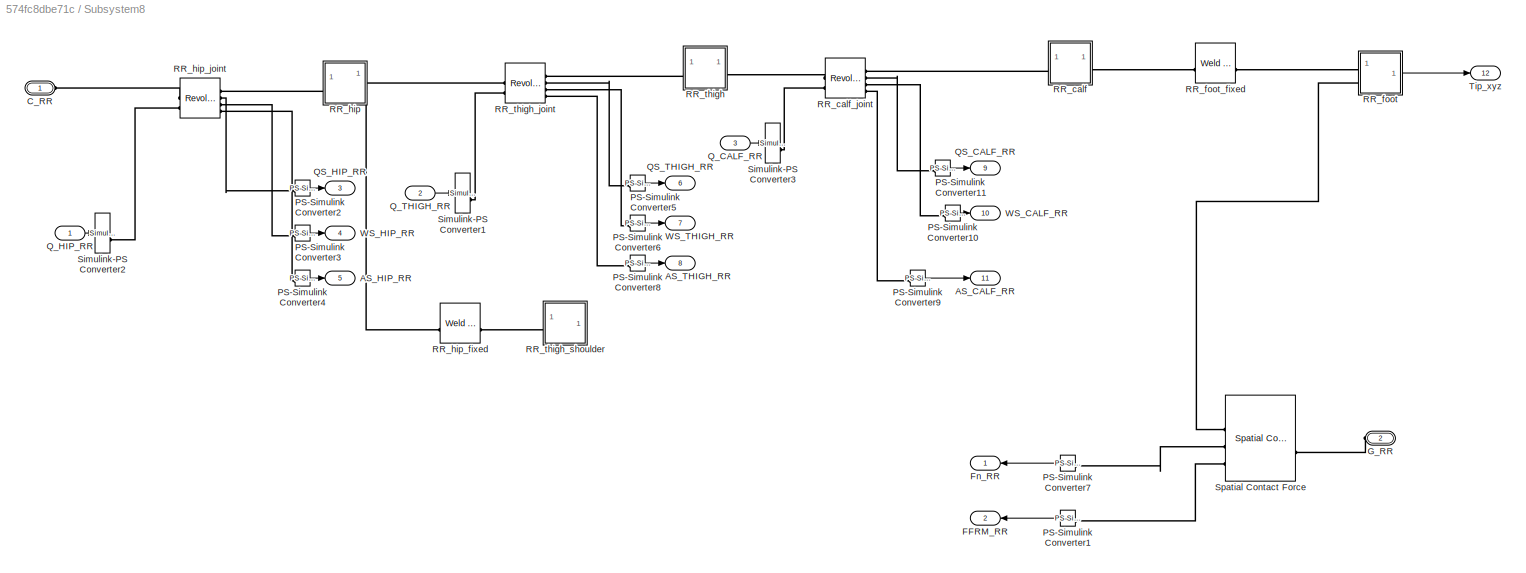
BLOCK [SubSystem] Subsystem8
BLOCK [Outport] Subsystem8/AS_CALF_RR
  Port = 11
BLOCK [Outport] Subsystem8/AS_HIP_RR
  Port = 5
BLOCK [Outport] Subsystem8/AS_THIGH_RR
  Port = 8
BLOCK [PMIOPort] Subsystem8/C_RR
  Side = Left
BLOCK [Outport] Subsystem8/FFRM_RR
  NameLocation = top
  Port = 2
BLOCK [Outport] Subsystem8/Fn_RR
  NameLocation = top
BLOCK [PMIOPort] Subsystem8/G_RR
  NameLocation = top
  Port = 2
  Side = Left
BLOCK [Reference] Subsystem8/PS-Simulink Converter1  REF=nesl_utility/PS-Simulink
Converter
  NameLocation = top
  SourceBlock = nesl_utility/PS-Simulink\nConverter
  SourceType = PS-Simulink\nConverter
BLOCK [Reference] Subsystem8/PS-Simulink Converter10  REF=nesl_utility/PS-Simulink
Converter
  SourceBlock = nesl_utility/PS-Simulink\nConverter
  SourceType = PS-Simulink\nConverter
BLOCK [Reference] Subsystem8/PS-Simulink Converter11  REF=nesl_utility/PS-Simulink
Converter
  SourceBlock = nesl_utility/PS-Simulink\nConverter
  SourceType = PS-Simulink\nConverter
BLOCK [Reference] Subsystem8/PS-Simulink Converter2  REF=nesl_utility/PS-Simulink
Converter
  SourceBlock = nesl_utility/PS-Simulink\nConverter
  SourceType = PS-Simulink\nConverter
BLOCK [Reference] Subsystem8/PS-Simulink Converter3  REF=nesl_utility/PS-Simulink
Converter
  SourceBlock = nesl_utility/PS-Simulink\nConverter
  SourceType = PS-Simulink\nConverter
BLOCK [Reference] Subsystem8/PS-Simulink Converter4  REF=nesl_utility/PS-Simulink
Converter
  SourceBlock = nesl_utility/PS-Simulink\nConverter
  SourceType = PS-Simulink\nConverter
BLOCK [Reference] Subsystem8/PS-Simulink Converter5  REF=nesl_utility/PS-Simulink
Converter
  SourceBlock = nesl_utility/PS-Simulink\nConverter
  SourceType = PS-Simulink\nConverter
BLOCK [Reference] Subsystem8/PS-Simulink Converter6  REF=nesl_utility/PS-Simulink
Converter
  SourceBlock = nesl_utility/PS-Simulink\nConverter
  SourceType = PS-Simulink\nConverter
BLOCK [Reference] Subsystem8/PS-Simulink Converter7  REF=nesl_utility/PS-Simulink
Converter
  NameLocation = top
  SourceBlock = nesl_utility/PS-Simulink\nConverter
  SourceType = PS-Simulink\nConverter
BLOCK [Reference] Subsystem8/PS-Simulink Converter8  REF=nesl_utility/PS-Simulink
Converter
  SourceBlock = nesl_utility/PS-Simulink\nConverter
  SourceType = PS-Simulink\nConverter
BLOCK [Reference] Subsystem8/PS-Simulink Converter9  REF=nesl_utility/PS-Simulink
Converter
  SourceBlock = nesl_utility/PS-Simulink\nConverter
  SourceType = PS-Simulink\nConverter
BLOCK [Outport] Subsystem8/QS_CALF_RR
  Port = 9
BLOCK [Outport] Subsystem8/QS_HIP_RR
  Port = 3
BLOCK [Outport] Subsystem8/QS_THIGH_RR
  Port = 6
BLOCK [Inport] Subsystem8/Q_CALF_RR
  Port = 3
BLOCK [Inport] Subsystem8/Q_HIP_RR
BLOCK [Inport] Subsystem8/Q_THIGH_RR
  Port = 2
BLOCK [SubSystem] Subsystem8/RR_calf
BLOCK [PMIOPort] Subsystem8/RR_calf/F
  Side = Left
BLOCK [PMIOPort] Subsystem8/RR_calf/F1
  Port = 2
  Side = Right
BLOCK [Reference] Subsystem8/RR_calf/Inertia  REF=sm_lib/Body Elements/Inertia
  SourceBlock = sm_lib/Body Elements/Inertia
  SourceType = Inertia
BLOCK [Reference] Subsystem8/RR_calf/InertiaOriginTransform  REF=sm_lib/Frames and
Transforms/Rigid
Transform
  SourceBlock = sm_lib/Frames and\nTransforms/Rigid\nTransform
  SourceType = Rigid\nTransform
BLOCK [Reference] Subsystem8/RR_calf/RR_calf_joint_AxisInvTransform  REF=sm_lib/Frames and
Transforms/Rigid
Transform
  SourceBlock = sm_lib/Frames and\nTransforms/Rigid\nTransform
  SourceType = Rigid\nTransform
BLOCK [Reference] Subsystem8/RR_calf/RR_foot_fixed_OriginTransform  REF=sm_lib/Frames and
Transforms/Rigid
Transform
  SourceBlock = sm_lib/Frames and\nTransforms/Rigid\nTransform
  SourceType = Rigid\nTransform
BLOCK [Reference] Subsystem8/RR_calf/ReferenceFrame  REF=sm_lib/Frames and
Transforms/Reference
Frame
  SourceBlock = sm_lib/Frames and\nTransforms/Reference\nFrame
  SourceType = Reference\nFrame
BLOCK [Reference] Subsystem8/RR_calf/Visual  REF=sm_lib/Body Elements/File Solid
  SourceBlock = sm_lib/Body Elements/File Solid
  SourceType = File Solid
BLOCK [Reference] Subsystem8/RR_calf/VisualOriginTransform  REF=sm_lib/Frames and
Transforms/Rigid
Transform
  SourceBlock = sm_lib/Frames and\nTransforms/Rigid\nTransform
  SourceType = Rigid\nTransform
BLOCK [Reference] Subsystem8/RR_calf_joint  REF=sm_lib/Joints/Revolute Joint
  SourceBlock = sm_lib/Joints/Revolute Joint
  SourceType = Revolute Joint
BLOCK [SubSystem] Subsystem8/RR_foot
BLOCK [BusCreator] Subsystem8/RR_foot/Bus Creator
  DisplayOption = bar
  InheritFromInputs = on
  Inputs = 3
BLOCK [PMIOPort] Subsystem8/RR_foot/F
  Side = Left
BLOCK [PMIOPort] Subsystem8/RR_foot/F1
  Port = 2
  Side = Left
BLOCK [Reference] Subsystem8/RR_foot/Inertia  REF=sm_lib/Body Elements/Inertia
  SourceBlock = sm_lib/Body Elements/Inertia
  SourceType = Inertia
BLOCK [Reference] Subsystem8/RR_foot/InertiaOriginTransform  REF=sm_lib/Frames and
Transforms/Rigid
Transform
  SourceBlock = sm_lib/Frames and\nTransforms/Rigid\nTransform
  SourceType = Rigid\nTransform
BLOCK [Outport] Subsystem8/RR_foot/Out1
BLOCK [Reference] Subsystem8/RR_foot/PS-Simulink Converter  REF=nesl_utility/PS-Simulink
Converter
  SourceBlock = nesl_utility/PS-Simulink\nConverter
  SourceType = PS-Simulink\nConverter
BLOCK [Reference] Subsystem8/RR_foot/PS-Simulink Converter1  REF=nesl_utility/PS-Simulink
Converter
  SourceBlock = nesl_utility/PS-Simulink\nConverter
  SourceType = PS-Simulink\nConverter
BLOCK [Reference] Subsystem8/RR_foot/PS-Simulink Converter2  REF=nesl_utility/PS-Simulink
Converter
  SourceBlock = nesl_utility/PS-Simulink\nConverter
  SourceType = PS-Simulink\nConverter
BLOCK [Reference] Subsystem8/RR_foot/ReferenceFrame  REF=sm_lib/Frames and
Transforms/Reference
Frame
  SourceBlock = sm_lib/Frames and\nTransforms/Reference\nFrame
  SourceType = Reference\nFrame
BLOCK [Reference] Subsystem8/RR_foot/Transform Sensor  REF=sm_lib/Frames and
Transforms/Transform
Sensor
  NameLocation = top
  SourceBlock = sm_lib/Frames and\nTransforms/Transform\nSensor
  SourceType = Transform\nSensor
BLOCK [Reference] Subsystem8/RR_foot/Visual  REF=sm_lib/Body Elements/Spherical Solid
  SourceBlock = sm_lib/Body Elements/Spherical Solid
  SourceType = Spherical Solid
BLOCK [Reference] Subsystem8/RR_foot/VisualOriginTransform  REF=sm_lib/Frames and
Transforms/Rigid
Transform
  SourceBlock = sm_lib/Frames and\nTransforms/Rigid\nTransform
  SourceType = Rigid\nTransform
BLOCK [Reference] Subsystem8/RR_foot/World Frame  REF=sm_lib/Frames and
Transforms/World Frame
  SourceBlock = sm_lib/Frames and\nTransforms/World Frame
  SourceType = World Frame
BLOCK [Reference] Subsystem8/RR_foot_fixed  REF=sm_lib/Joints/Weld Joint
  SourceBlock = sm_lib/Joints/Weld Joint
  SourceType = Weld Joint
BLOCK [SubSystem] Subsystem8/RR_hip
BLOCK [PMIOPort] Subsystem8/RR_hip/F
  Side = Left
BLOCK [PMIOPort] Subsystem8/RR_hip/F1
  Port = 3
  Side = Right
BLOCK [PMIOPort] Subsystem8/RR_hip/F2
  Port = 2
  Side = Right
BLOCK [Reference] Subsystem8/RR_hip/Inertia  REF=sm_lib/Body Elements/Inertia
  SourceBlock = sm_lib/Body Elements/Inertia
  SourceType = Inertia
BLOCK [Reference] Subsystem8/RR_hip/InertiaOriginTransform  REF=sm_lib/Frames and
Transforms/Rigid
Transform
  SourceBlock = sm_lib/Frames and\nTransforms/Rigid\nTransform
  SourceType = Rigid\nTransform
BLOCK [Reference] Subsystem8/RR_hip/RR_hip_fixed_OriginTransform  REF=sm_lib/Frames and
Transforms/Rigid
Transform
  SourceBlock = sm_lib/Frames and\nTransforms/Rigid\nTransform
  SourceType = Rigid\nTransform
BLOCK [Reference] Subsystem8/RR_hip/RR_hip_joint_AxisInvTransform  REF=sm_lib/Frames and
Transforms/Rigid
Transform
  SourceBlock = sm_lib/Frames and\nTransforms/Rigid\nTransform
  SourceType = Rigid\nTransform
BLOCK [Reference] Subsystem8/RR_hip/RR_thigh_joint_AxisTransform  REF=sm_lib/Frames and
Transforms/Rigid
Transform
  SourceBlock = sm_lib/Frames and\nTransforms/Rigid\nTransform
  SourceType = Rigid\nTransform
BLOCK [Reference] Subsystem8/RR_hip/RR_thigh_joint_OriginTransform  REF=sm_lib/Frames and
Transforms/Rigid
Transform
  SourceBlock = sm_lib/Frames and\nTransforms/Rigid\nTransform
  SourceType = Rigid\nTransform
BLOCK [Reference] Subsystem8/RR_hip/ReferenceFrame  REF=sm_lib/Frames and
Transforms/Reference
Frame
  SourceBlock = sm_lib/Frames and\nTransforms/Reference\nFrame
  SourceType = Reference\nFrame
BLOCK [Reference] Subsystem8/RR_hip/Visual  REF=sm_lib/Body Elements/File Solid
  SourceBlock = sm_lib/Body Elements/File Solid
  SourceType = File Solid
BLOCK [Reference] Subsystem8/RR_hip/VisualOriginTransform  REF=sm_lib/Frames and
Transforms/Rigid
Transform
  SourceBlock = sm_lib/Frames and\nTransforms/Rigid\nTransform
  SourceType = Rigid\nTransform
BLOCK [Reference] Subsystem8/RR_hip_fixed  REF=sm_lib/Joints/Weld Joint
  SourceBlock = sm_lib/Joints/Weld Joint
  SourceType = Weld Joint
BLOCK [Reference] Subsystem8/RR_hip_joint  REF=sm_lib/Joints/Revolute Joint
  SourceBlock = sm_lib/Joints/Revolute Joint
  SourceType = Revolute Joint
BLOCK [SubSystem] Subsystem8/RR_thigh
BLOCK [PMIOPort] Subsystem8/RR_thigh/F
  Side = Left
BLOCK [PMIOPort] Subsystem8/RR_thigh/F1
  Port = 2
  Side = Right
BLOCK [Reference] Subsystem8/RR_thigh/Inertia  REF=sm_lib/Body Elements/Inertia
  SourceBlock = sm_lib/Body Elements/Inertia
  SourceType = Inertia
BLOCK [Reference] Subsystem8/RR_thigh/InertiaOriginTransform  REF=sm_lib/Frames and
Transforms/Rigid
Transform
  SourceBlock = sm_lib/Frames and\nTransforms/Rigid\nTransform
  SourceType = Rigid\nTransform
BLOCK [Reference] Subsystem8/RR_thigh/RR_calf_joint_AxisTransform  REF=sm_lib/Frames and
Transforms/Rigid
Transform
  SourceBlock = sm_lib/Frames and\nTransforms/Rigid\nTransform
  SourceType = Rigid\nTransform
BLOCK [Reference] Subsystem8/RR_thigh/RR_calf_joint_OriginTransform  REF=sm_lib/Frames and
Transforms/Rigid
Transform
  SourceBlock = sm_lib/Frames and\nTransforms/Rigid\nTransform
  SourceType = Rigid\nTransform
BLOCK [Reference] Subsystem8/RR_thigh/RR_thigh_joint_AxisInvTransform  REF=sm_lib/Frames and
Transforms/Rigid
Transform
  SourceBlock = sm_lib/Frames and\nTransforms/Rigid\nTransform
  SourceType = Rigid\nTransform
BLOCK [Reference] Subsystem8/RR_thigh/ReferenceFrame  REF=sm_lib/Frames and
Transforms/Reference
Frame
  SourceBlock = sm_lib/Frames and\nTransforms/Reference\nFrame
  SourceType = Reference\nFrame
BLOCK [Reference] Subsystem8/RR_thigh/Visual  REF=sm_lib/Body Elements/File Solid
  SourceBlock = sm_lib/Body Elements/File Solid
  SourceType = File Solid
BLOCK [Reference] Subsystem8/RR_thigh/VisualOriginTransform  REF=sm_lib/Frames and
Transforms/Rigid
Transform
  SourceBlock = sm_lib/Frames and\nTransforms/Rigid\nTransform
  SourceType = Rigid\nTransform
BLOCK [Reference] Subsystem8/RR_thigh_joint  REF=sm_lib/Joints/Revolute Joint
  SourceBlock = sm_lib/Joints/Revolute Joint
  SourceType = Revolute Joint
BLOCK [SubSystem] Subsystem8/RR_thigh_shoulder
BLOCK [PMIOPort] Subsystem8/RR_thigh_shoulder/F
  Side = Left
BLOCK [Reference] Subsystem8/RR_thigh_shoulder/ReferenceFrame  REF=sm_lib/Frames and
Transforms/Reference
Frame
  SourceBlock = sm_lib/Frames and\nTransforms/Reference\nFrame
  SourceType = Reference\nFrame
BLOCK [Reference] Subsystem8/Simulink-PS Converter1  REF=nesl_utility/Simulink-PS
Converter
  SourceBlock = nesl_utility/Simulink-PS\nConverter
  SourceType = Simulink-PS\nConverter
BLOCK [Reference] Subsystem8/Simulink-PS Converter2  REF=nesl_utility/Simulink-PS
Converter
  SourceBlock = nesl_utility/Simulink-PS\nConverter
  SourceType = Simulink-PS\nConverter
BLOCK [Reference] Subsystem8/Simulink-PS Converter3  REF=nesl_utility/Simulink-PS
Converter
  SourceBlock = nesl_utility/Simulink-PS\nConverter
  SourceType = Simulink-PS\nConverter
BLOCK [Reference] Subsystem8/Spatial Contact Force  REF=sm_lib/Forces and
Torques/Spatial
Contact Force
  NameLocation = top
  SourceBlock = sm_lib/Forces and\nTorques/Spatial\nContact Force
  SourceType = Spatial\nContact Force
BLOCK [Outport] Subsystem8/Tip_xyz
  Port = 12
BLOCK [Outport] Subsystem8/WS_CALF_RR
  Port = 10
BLOCK [Outport] Subsystem8/WS_HIP_RR
  Port = 4
BLOCK [Outport] Subsystem8/WS_THIGH_RR
  Port = 7
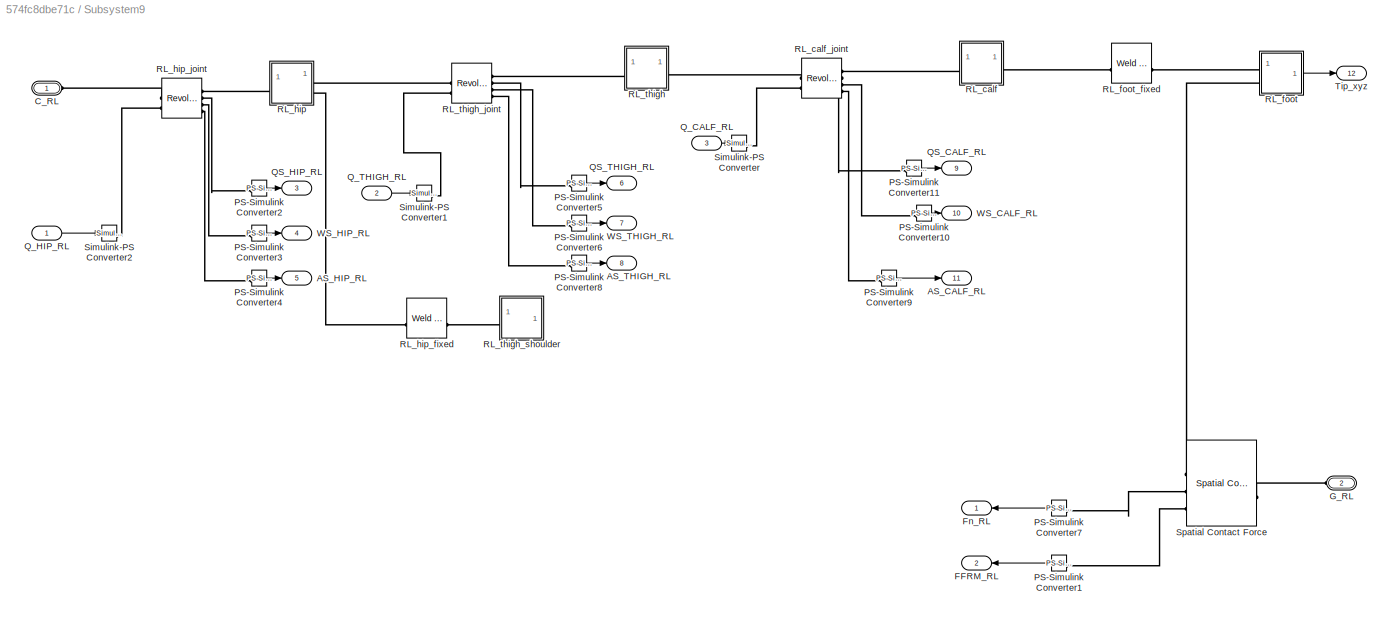
BLOCK [SubSystem] Subsystem9
BLOCK [Outport] Subsystem9/AS_CALF_RL
  Port = 11
BLOCK [Outport] Subsystem9/AS_HIP_RL
  Port = 5
BLOCK [Outport] Subsystem9/AS_THIGH_RL
  Port = 8
BLOCK [PMIOPort] Subsystem9/C_RL
  Side = Left
BLOCK [Outport] Subsystem9/FFRM_RL
  NameLocation = top
  Port = 2
BLOCK [Outport] Subsystem9/Fn_RL
  NameLocation = top
BLOCK [PMIOPort] Subsystem9/G_RL
  NameLocation = top
  Port = 2
  Side = Left
BLOCK [Reference] Subsystem9/PS-Simulink Converter1  REF=nesl_utility/PS-Simulink
Converter
  NameLocation = top
  SourceBlock = nesl_utility/PS-Simulink\nConverter
  SourceType = PS-Simulink\nConverter
BLOCK [Reference] Subsystem9/PS-Simulink Converter10  REF=nesl_utility/PS-Simulink
Converter
  SourceBlock = nesl_utility/PS-Simulink\nConverter
  SourceType = PS-Simulink\nConverter
BLOCK [Reference] Subsystem9/PS-Simulink Converter11  REF=nesl_utility/PS-Simulink
Converter
  SourceBlock = nesl_utility/PS-Simulink\nConverter
  SourceType = PS-Simulink\nConverter
BLOCK [Reference] Subsystem9/PS-Simulink Converter2  REF=nesl_utility/PS-Simulink
Converter
  SourceBlock = nesl_utility/PS-Simulink\nConverter
  SourceType = PS-Simulink\nConverter
BLOCK [Reference] Subsystem9/PS-Simulink Converter3  REF=nesl_utility/PS-Simulink
Converter
  SourceBlock = nesl_utility/PS-Simulink\nConverter
  SourceType = PS-Simulink\nConverter
BLOCK [Reference] Subsystem9/PS-Simulink Converter4  REF=nesl_utility/PS-Simulink
Converter
  SourceBlock = nesl_utility/PS-Simulink\nConverter
  SourceType = PS-Simulink\nConverter
BLOCK [Reference] Subsystem9/PS-Simulink Converter5  REF=nesl_utility/PS-Simulink
Converter
  SourceBlock = nesl_utility/PS-Simulink\nConverter
  SourceType = PS-Simulink\nConverter
BLOCK [Reference] Subsystem9/PS-Simulink Converter6  REF=nesl_utility/PS-Simulink
Converter
  SourceBlock = nesl_utility/PS-Simulink\nConverter
  SourceType = PS-Simulink\nConverter
BLOCK [Reference] Subsystem9/PS-Simulink Converter7  REF=nesl_utility/PS-Simulink
Converter
  NameLocation = top
  SourceBlock = nesl_utility/PS-Simulink\nConverter
  SourceType = PS-Simulink\nConverter
BLOCK [Reference] Subsystem9/PS-Simulink Converter8  REF=nesl_utility/PS-Simulink
Converter
  SourceBlock = nesl_utility/PS-Simulink\nConverter
  SourceType = PS-Simulink\nConverter
BLOCK [Reference] Subsystem9/PS-Simulink Converter9  REF=nesl_utility/PS-Simulink
Converter
  SourceBlock = nesl_utility/PS-Simulink\nConverter
  SourceType = PS-Simulink\nConverter
BLOCK [Outport] Subsystem9/QS_CALF_RL
  Port = 9
BLOCK [Outport] Subsystem9/QS_HIP_RL
  Port = 3
BLOCK [Outport] Subsystem9/QS_THIGH_RL
  Port = 6
BLOCK [Inport] Subsystem9/Q_CALF_RL
  Port = 3
BLOCK [Inport] Subsystem9/Q_HIP_RL
BLOCK [Inport] Subsystem9/Q_THIGH_RL
  Port = 2
BLOCK [SubSystem] Subsystem9/RL_calf
BLOCK [PMIOPort] Subsystem9/RL_calf/F
  Side = Left
BLOCK [PMIOPort] Subsystem9/RL_calf/F1
  Port = 2
  Side = Right
BLOCK [Reference] Subsystem9/RL_calf/Inertia  REF=sm_lib/Body Elements/Inertia
  SourceBlock = sm_lib/Body Elements/Inertia
  SourceType = Inertia
BLOCK [Reference] Subsystem9/RL_calf/InertiaOriginTransform  REF=sm_lib/Frames and
Transforms/Rigid
Transform
  SourceBlock = sm_lib/Frames and\nTransforms/Rigid\nTransform
  SourceType = Rigid\nTransform
BLOCK [Reference] Subsystem9/RL_calf/RL_calf_joint_AxisInvTransform  REF=sm_lib/Frames and
Transforms/Rigid
Transform
  SourceBlock = sm_lib/Frames and\nTransforms/Rigid\nTransform
  SourceType = Rigid\nTransform
BLOCK [Reference] Subsystem9/RL_calf/RL_foot_fixed_OriginTransform  REF=sm_lib/Frames and
Transforms/Rigid
Transform
  SourceBlock = sm_lib/Frames and\nTransforms/Rigid\nTransform
  SourceType = Rigid\nTransform
BLOCK [Reference] Subsystem9/RL_calf/ReferenceFrame  REF=sm_lib/Frames and
Transforms/Reference
Frame
  SourceBlock = sm_lib/Frames and\nTransforms/Reference\nFrame
  SourceType = Reference\nFrame
BLOCK [Reference] Subsystem9/RL_calf/Visual  REF=sm_lib/Body Elements/File Solid
  SourceBlock = sm_lib/Body Elements/File Solid
  SourceType = File Solid
BLOCK [Reference] Subsystem9/RL_calf/VisualOriginTransform  REF=sm_lib/Frames and
Transforms/Rigid
Transform
  SourceBlock = sm_lib/Frames and\nTransforms/Rigid\nTransform
  SourceType = Rigid\nTransform
BLOCK [Reference] Subsystem9/RL_calf_joint  REF=sm_lib/Joints/Revolute Joint
  SourceBlock = sm_lib/Joints/Revolute Joint
  SourceType = Revolute Joint
BLOCK [SubSystem] Subsystem9/RL_foot
BLOCK [BusCreator] Subsystem9/RL_foot/Bus Creator
  DisplayOption = bar
  InheritFromInputs = on
  Inputs = 3
BLOCK [PMIOPort] Subsystem9/RL_foot/F
  Side = Left
BLOCK [PMIOPort] Subsystem9/RL_foot/F1
  Port = 2
  Side = Left
BLOCK [Reference] Subsystem9/RL_foot/Inertia  REF=sm_lib/Body Elements/Inertia
  SourceBlock = sm_lib/Body Elements/Inertia
  SourceType = Inertia
BLOCK [Reference] Subsystem9/RL_foot/InertiaOriginTransform  REF=sm_lib/Frames and
Transforms/Rigid
Transform
  SourceBlock = sm_lib/Frames and\nTransforms/Rigid\nTransform
  SourceType = Rigid\nTransform
BLOCK [Outport] Subsystem9/RL_foot/Out1
BLOCK [Reference] Subsystem9/RL_foot/PS-Simulink Converter  REF=nesl_utility/PS-Simulink
Converter
  SourceBlock = nesl_utility/PS-Simulink\nConverter
  SourceType = PS-Simulink\nConverter
BLOCK [Reference] Subsystem9/RL_foot/PS-Simulink Converter1  REF=nesl_utility/PS-Simulink
Converter
  SourceBlock = nesl_utility/PS-Simulink\nConverter
  SourceType = PS-Simulink\nConverter
BLOCK [Reference] Subsystem9/RL_foot/PS-Simulink Converter2  REF=nesl_utility/PS-Simulink
Converter
  SourceBlock = nesl_utility/PS-Simulink\nConverter
  SourceType = PS-Simulink\nConverter
BLOCK [Reference] Subsystem9/RL_foot/ReferenceFrame  REF=sm_lib/Frames and
Transforms/Reference
Frame
  SourceBlock = sm_lib/Frames and\nTransforms/Reference\nFrame
  SourceType = Reference\nFrame
BLOCK [Reference] Subsystem9/RL_foot/Transform Sensor  REF=sm_lib/Frames and
Transforms/Transform
Sensor
  NameLocation = top
  SourceBlock = sm_lib/Frames and\nTransforms/Transform\nSensor
  SourceType = Transform\nSensor
BLOCK [Reference] Subsystem9/RL_foot/Visual  REF=sm_lib/Body Elements/Spherical Solid
  SourceBlock = sm_lib/Body Elements/Spherical Solid
  SourceType = Spherical Solid
BLOCK [Reference] Subsystem9/RL_foot/VisualOriginTransform  REF=sm_lib/Frames and
Transforms/Rigid
Transform
  SourceBlock = sm_lib/Frames and\nTransforms/Rigid\nTransform
  SourceType = Rigid\nTransform
BLOCK [Reference] Subsystem9/RL_foot/World Frame  REF=sm_lib/Frames and
Transforms/World Frame
  SourceBlock = sm_lib/Frames and\nTransforms/World Frame
  SourceType = World Frame
BLOCK [Reference] Subsystem9/RL_foot_fixed  REF=sm_lib/Joints/Weld Joint
  SourceBlock = sm_lib/Joints/Weld Joint
  SourceType = Weld Joint
BLOCK [SubSystem] Subsystem9/RL_hip
BLOCK [PMIOPort] Subsystem9/RL_hip/F
  Side = Left
BLOCK [PMIOPort] Subsystem9/RL_hip/F1
  Port = 3
  Side = Right
BLOCK [PMIOPort] Subsystem9/RL_hip/F2
  Port = 2
  Side = Right
BLOCK [Reference] Subsystem9/RL_hip/Inertia  REF=sm_lib/Body Elements/Inertia
  SourceBlock = sm_lib/Body Elements/Inertia
  SourceType = Inertia
BLOCK [Reference] Subsystem9/RL_hip/InertiaOriginTransform  REF=sm_lib/Frames and
Transforms/Rigid
Transform
  SourceBlock = sm_lib/Frames and\nTransforms/Rigid\nTransform
  SourceType = Rigid\nTransform
BLOCK [Reference] Subsystem9/RL_hip/RL_hip_fixed_OriginTransform  REF=sm_lib/Frames and
Transforms/Rigid
Transform
  SourceBlock = sm_lib/Frames and\nTransforms/Rigid\nTransform
  SourceType = Rigid\nTransform
BLOCK [Reference] Subsystem9/RL_hip/RL_hip_joint_AxisInvTransform  REF=sm_lib/Frames and
Transforms/Rigid
Transform
  SourceBlock = sm_lib/Frames and\nTransforms/Rigid\nTransform
  SourceType = Rigid\nTransform
BLOCK [Reference] Subsystem9/RL_hip/RL_thigh_joint_AxisTransform  REF=sm_lib/Frames and
Transforms/Rigid
Transform
  SourceBlock = sm_lib/Frames and\nTransforms/Rigid\nTransform
  SourceType = Rigid\nTransform
BLOCK [Reference] Subsystem9/RL_hip/RL_thigh_joint_OriginTransform  REF=sm_lib/Frames and
Transforms/Rigid
Transform
  SourceBlock = sm_lib/Frames and\nTransforms/Rigid\nTransform
  SourceType = Rigid\nTransform
BLOCK [Reference] Subsystem9/RL_hip/ReferenceFrame  REF=sm_lib/Frames and
Transforms/Reference
Frame
  SourceBlock = sm_lib/Frames and\nTransforms/Reference\nFrame
  SourceType = Reference\nFrame
BLOCK [Reference] Subsystem9/RL_hip/Visual  REF=sm_lib/Body Elements/File Solid
  SourceBlock = sm_lib/Body Elements/File Solid
  SourceType = File Solid
BLOCK [Reference] Subsystem9/RL_hip/VisualOriginTransform  REF=sm_lib/Frames and
Transforms/Rigid
Transform
  SourceBlock = sm_lib/Frames and\nTransforms/Rigid\nTransform
  SourceType = Rigid\nTransform
BLOCK [Reference] Subsystem9/RL_hip_fixed  REF=sm_lib/Joints/Weld Joint
  SourceBlock = sm_lib/Joints/Weld Joint
  SourceType = Weld Joint
BLOCK [Reference] Subsystem9/RL_hip_joint  REF=sm_lib/Joints/Revolute Joint
  SourceBlock = sm_lib/Joints/Revolute Joint
  SourceType = Revolute Joint
BLOCK [SubSystem] Subsystem9/RL_thigh
BLOCK [PMIOPort] Subsystem9/RL_thigh/F
  Side = Left
BLOCK [PMIOPort] Subsystem9/RL_thigh/F1
  Port = 2
  Side = Right
BLOCK [Reference] Subsystem9/RL_thigh/Inertia  REF=sm_lib/Body Elements/Inertia
  SourceBlock = sm_lib/Body Elements/Inertia
  SourceType = Inertia
BLOCK [Reference] Subsystem9/RL_thigh/InertiaOriginTransform  REF=sm_lib/Frames and
Transforms/Rigid
Transform
  SourceBlock = sm_lib/Frames and\nTransforms/Rigid\nTransform
  SourceType = Rigid\nTransform
BLOCK [Reference] Subsystem9/RL_thigh/RL_calf_joint_AxisTransform  REF=sm_lib/Frames and
Transforms/Rigid
Transform
  SourceBlock = sm_lib/Frames and\nTransforms/Rigid\nTransform
  SourceType = Rigid\nTransform
BLOCK [Reference] Subsystem9/RL_thigh/RL_calf_joint_OriginTransform  REF=sm_lib/Frames and
Transforms/Rigid
Transform
  SourceBlock = sm_lib/Frames and\nTransforms/Rigid\nTransform
  SourceType = Rigid\nTransform
BLOCK [Reference] Subsystem9/RL_thigh/RL_thigh_joint_AxisInvTransform  REF=sm_lib/Frames and
Transforms/Rigid
Transform
  SourceBlock = sm_lib/Frames and\nTransforms/Rigid\nTransform
  SourceType = Rigid\nTransform
BLOCK [Reference] Subsystem9/RL_thigh/ReferenceFrame  REF=sm_lib/Frames and
Transforms/Reference
Frame
  SourceBlock = sm_lib/Frames and\nTransforms/Reference\nFrame
  SourceType = Reference\nFrame
BLOCK [Reference] Subsystem9/RL_thigh/Visual  REF=sm_lib/Body Elements/File Solid
  SourceBlock = sm_lib/Body Elements/File Solid
  SourceType = File Solid
BLOCK [Reference] Subsystem9/RL_thigh/VisualOriginTransform  REF=sm_lib/Frames and
Transforms/Rigid
Transform
  SourceBlock = sm_lib/Frames and\nTransforms/Rigid\nTransform
  SourceType = Rigid\nTransform
BLOCK [Reference] Subsystem9/RL_thigh_joint  REF=sm_lib/Joints/Revolute Joint
  SourceBlock = sm_lib/Joints/Revolute Joint
  SourceType = Revolute Joint
BLOCK [SubSystem] Subsystem9/RL_thigh_shoulder
BLOCK [PMIOPort] Subsystem9/RL_thigh_shoulder/F
  Side = Left
BLOCK [Reference] Subsystem9/RL_thigh_shoulder/ReferenceFrame  REF=sm_lib/Frames and
Transforms/Reference
Frame
  SourceBlock = sm_lib/Frames and\nTransforms/Reference\nFrame
  SourceType = Reference\nFrame
BLOCK [Reference] Subsystem9/Simulink-PS Converter  REF=nesl_utility/Simulink-PS
Converter
  SourceBlock = nesl_utility/Simulink-PS\nConverter
  SourceType = Simulink-PS\nConverter
BLOCK [Reference] Subsystem9/Simulink-PS Converter1  REF=nesl_utility/Simulink-PS
Converter
  SourceBlock = nesl_utility/Simulink-PS\nConverter
  SourceType = Simulink-PS\nConverter
BLOCK [Reference] Subsystem9/Simulink-PS Converter2  REF=nesl_utility/Simulink-PS
Converter
  SourceBlock = nesl_utility/Simulink-PS\nConverter
  SourceType = Simulink-PS\nConverter
BLOCK [Reference] Subsystem9/Spatial Contact Force  REF=sm_lib/Forces and
Torques/Spatial
Contact Force
  NameLocation = top
  SourceBlock = sm_lib/Forces and\nTorques/Spatial\nContact Force
  SourceType = Spatial\nContact Force
BLOCK [Outport] Subsystem9/Tip_xyz
  Port = 12
BLOCK [Outport] Subsystem9/WS_CALF_RL
  Port = 10
BLOCK [Outport] Subsystem9/WS_HIP_RL
  Port = 4
BLOCK [Outport] Subsystem9/WS_THIGH_RL
  Port = 7
BLOCK [ToWorkspace] To Workspace4
  FixptAsFi = on
  MaxDataPoints = inf
  SampleTime = -1
  SaveFormat = Timeseries
  VariableName = simout4
BLOCK [Reference] imu_joint1  REF=sm_lib/Joints/Weld Joint
  SourceBlock = sm_lib/Joints/Weld Joint
  SourceType = Weld Joint
BLOCK [SubSystem] imu_link1
BLOCK [PMIOPort] imu_link1/F
  Side = Left
BLOCK [Reference] imu_link1/Inertia  REF=sm_lib/Body Elements/Inertia
  SourceBlock = sm_lib/Body Elements/Inertia
  SourceType = Inertia
BLOCK [Reference] imu_link1/InertiaOriginTransform  REF=sm_lib/Frames and
Transforms/Rigid
Transform
  SourceBlock = sm_lib/Frames and\nTransforms/Rigid\nTransform
  SourceType = Rigid\nTransform
BLOCK [Reference] imu_link1/ReferenceFrame  REF=sm_lib/Frames and
Transforms/Reference
Frame
  SourceBlock = sm_lib/Frames and\nTransforms/Reference\nFrame
  SourceType = Reference\nFrame
BLOCK [Reference] imu_link1/Visual  REF=sm_lib/Body Elements/Brick Solid
  SourceBlock = sm_lib/Body Elements/Brick Solid
  SourceType = Brick Solid
BLOCK [Reference] imu_link1/VisualOriginTransform  REF=sm_lib/Frames and
Transforms/Rigid
Transform
  SourceBlock = sm_lib/Frames and\nTransforms/Rigid\nTransform
  SourceType = Rigid\nTransform
BLOCK [SubSystem] trunk1
  NameLocation = top
  PortSchema = {"entries":[{"content":{"sides":[{"content":{"connectorIds":["Out1"]},"type":"ConnectorPlacement.EquallySpacedRectSide","uuid":"7376a86a-8770-43a1-89a9-4e7813322353"},{"content":{"connectorIds":["RConn1","RConn2","RConn3","RConn4","RConn5","RConn6"],"side":"RIGHT"},"type":"ConnectorPlacement.EquallySpacedRectSide","uuid":"180eba54-5c89-4d6d-8e58-15143fb194fc"},{"content":{"connectorIds":[],"side":...<+288ch>
BLOCK [Reference] trunk1/6-DOF Joint  REF=sm_lib/Joints/6-DOF Joint
  SourceBlock = sm_lib/Joints/6-DOF Joint
  SourceType = 6-DOF Joint
BLOCK [BusCreator] trunk1/Bus Creator
  DisplayOption = bar
  InheritFromInputs = on
  Inputs = 6
BLOCK [PMIOPort] trunk1/F1
  Port = 5
  Side = Right
BLOCK [PMIOPort] trunk1/F2
  Port = 4
  Side = Right
BLOCK [PMIOPort] trunk1/F3
  Port = 3
  Side = Right
BLOCK [PMIOPort] trunk1/F4
  Port = 2
  Side = Right
BLOCK [PMIOPort] trunk1/F5
  Side = Right
BLOCK [PMIOPort] trunk1/F6
  Port = 6
  Side = Right
BLOCK [Reference] trunk1/FL_hip_joint_AxisTransform  REF=sm_lib/Frames and
Transforms/Rigid
Transform
  SourceBlock = sm_lib/Frames and\nTransforms/Rigid\nTransform
  SourceType = Rigid\nTransform
BLOCK [Reference] trunk1/FL_hip_joint_OriginTransform  REF=sm_lib/Frames and
Transforms/Rigid
Transform
  SourceBlock = sm_lib/Frames and\nTransforms/Rigid\nTransform
  SourceType = Rigid\nTransform
BLOCK [Reference] trunk1/FR_hip_joint_AxisTransform  REF=sm_lib/Frames and
Transforms/Rigid
Transform
  SourceBlock = sm_lib/Frames and\nTransforms/Rigid\nTransform
  SourceType = Rigid\nTransform
BLOCK [Reference] trunk1/FR_hip_joint_OriginTransform  REF=sm_lib/Frames and
Transforms/Rigid
Transform
  SourceBlock = sm_lib/Frames and\nTransforms/Rigid\nTransform
  SourceType = Rigid\nTransform
BLOCK [Reference] trunk1/Inertia  REF=sm_lib/Body Elements/Inertia
  SourceBlock = sm_lib/Body Elements/Inertia
  SourceType = Inertia
BLOCK [Reference] trunk1/InertiaOriginTransform  REF=sm_lib/Frames and
Transforms/Rigid
Transform
  SourceBlock = sm_lib/Frames and\nTransforms/Rigid\nTransform
  SourceType = Rigid\nTransform
BLOCK [Reference] trunk1/PS-Simulink Converter1  REF=nesl_utility/PS-Simulink
Converter
  SourceBlock = nesl_utility/PS-Simulink\nConverter
  SourceType = PS-Simulink\nConverter
BLOCK [Reference] trunk1/PS-Simulink Converter2  REF=nesl_utility/PS-Simulink
Converter
  SourceBlock = nesl_utility/PS-Simulink\nConverter
  SourceType = PS-Simulink\nConverter
BLOCK [Reference] trunk1/PS-Simulink Converter3  REF=nesl_utility/PS-Simulink
Converter
  SourceBlock = nesl_utility/PS-Simulink\nConverter
  SourceType = PS-Simulink\nConverter
BLOCK [Reference] trunk1/PS-Simulink Converter4  REF=nesl_utility/PS-Simulink
Converter
  SourceBlock = nesl_utility/PS-Simulink\nConverter
  SourceType = PS-Simulink\nConverter
BLOCK [Reference] trunk1/PS-Simulink Converter5  REF=nesl_utility/PS-Simulink
Converter
  SourceBlock = nesl_utility/PS-Simulink\nConverter
  SourceType = PS-Simulink\nConverter
BLOCK [Reference] trunk1/PS-Simulink Converter6  REF=nesl_utility/PS-Simulink
Converter
  SourceBlock = nesl_utility/PS-Simulink\nConverter
  SourceType = PS-Simulink\nConverter
BLOCK [Reference] trunk1/RL_hip_joint_AxisTransform  REF=sm_lib/Frames and
Transforms/Rigid
Transform
  SourceBlock = sm_lib/Frames and\nTransforms/Rigid\nTransform
  SourceType = Rigid\nTransform
BLOCK [Reference] trunk1/RL_hip_joint_OriginTransform  REF=sm_lib/Frames and
Transforms/Rigid
Transform
  SourceBlock = sm_lib/Frames and\nTransforms/Rigid\nTransform
  SourceType = Rigid\nTransform
BLOCK [Reference] trunk1/RR_hip_joint_AxisTransform  REF=sm_lib/Frames and
Transforms/Rigid
Transform
  SourceBlock = sm_lib/Frames and\nTransforms/Rigid\nTransform
  SourceType = Rigid\nTransform
BLOCK [Reference] trunk1/RR_hip_joint_OriginTransform  REF=sm_lib/Frames and
Transforms/Rigid
Transform
  SourceBlock = sm_lib/Frames and\nTransforms/Rigid\nTransform
  SourceType = Rigid\nTransform
BLOCK [Reference] trunk1/ReferenceFrame  REF=sm_lib/Frames and
Transforms/Reference
Frame
  SourceBlock = sm_lib/Frames and\nTransforms/Reference\nFrame
  SourceType = Reference\nFrame
BLOCK [Reference] trunk1/Transform Sensor  REF=sm_lib/Frames and
Transforms/Transform
Sensor
  SourceBlock = sm_lib/Frames and\nTransforms/Transform\nSensor
  SourceType = Transform\nSensor
BLOCK [UnitDelay] trunk1/Unit Delay
  HasFrameUpgradeWarning = on
  SampleTime = -1
BLOCK [UnitDelay] trunk1/Unit Delay1
  HasFrameUpgradeWarning = on
  SampleTime = -1
BLOCK [UnitDelay] trunk1/Unit Delay2
  HasFrameUpgradeWarning = on
  SampleTime = -1
BLOCK [UnitDelay] trunk1/Unit Delay3
  HasFrameUpgradeWarning = on
  InitialCondition = eye(3)
  SampleTime = -1
BLOCK [UnitDelay] trunk1/Unit Delay4
  HasFrameUpgradeWarning = on
  SampleTime = -1
BLOCK [UnitDelay] trunk1/Unit Delay5
  HasFrameUpgradeWarning = on
  SampleTime = -1
BLOCK [Reference] trunk1/Visual  REF=sm_lib/Body Elements/File Solid
  SourceBlock = sm_lib/Body Elements/File Solid
  SourceType = File Solid
BLOCK [Reference] trunk1/VisualOriginTransform  REF=sm_lib/Frames and
Transforms/Rigid
Transform
  SourceBlock = sm_lib/Frames and\nTransforms/Rigid\nTransform
  SourceType = Rigid\nTransform
BLOCK [Reference] trunk1/imu_joint_OriginTransform  REF=sm_lib/Frames and
Transforms/Rigid
Transform
  SourceBlock = sm_lib/Frames and\nTransforms/Rigid\nTransform
  SourceType = Rigid\nTransform
BLOCK [Outport] trunk1/meas
  VectorParamsAs1DForOutWhenUnconnected = off
ANNOTATION (root): 0
LINE Constant12:1 -> MATLAB Function1:1
LINE Constant1:1 -> MATLAB Function6:1
LINE Constant2:1 -> MATLAB Function5:1
LINE Constant3:1 -> MATLAB Function7:1
NET Constant4:1 -> MATLAB Function1:7, MATLAB Function5:7, MATLAB Function6:7, MATLAB Function7:7
NET Constant5:1 -> MATLAB Function1:6, MATLAB Function5:6, MATLAB Function6:6, MATLAB Function7:6
NET Constant6:1 -> MATLAB Function1:5, MATLAB Function5:5, MATLAB Function6:5, MATLAB Function7:5
NET Constant7:1 -> MATLAB Function1:4, MATLAB Function5:4, MATLAB Function6:4, MATLAB Function7:4
NET Constant8:1 -> MATLAB Function1:3, MATLAB Function5:3, MATLAB Function6:3, MATLAB Function7:3
NET Constant9:1 -> MATLAB Function1:2, MATLAB Function5:2, MATLAB Function6:2, MATLAB Function7:2
LINE Demux5:1 -> Subsystem10:1
LINE Demux5:2 -> Subsystem10:2
LINE Demux5:3 -> Subsystem10:3
LINE Demux6:1 -> Subsystem8:1
LINE Demux6:2 -> Subsystem8:2
LINE Demux6:3 -> Subsystem8:3
LINE Demux7:1 -> Subsystem11:1
LINE Demux7:2 -> Subsystem11:2
LINE Demux7:3 -> Subsystem11:3
LINE Demux8:1 -> Subsystem9:1
LINE Demux8:2 -> Subsystem9:2
LINE Demux8:3 -> Subsystem9:3
LINE MATLAB Function1:1 -> Demux5:1
LINE MATLAB Function5:1 -> Demux6:1
LINE MATLAB Function6:1 -> Demux7:1
LINE MATLAB Function7:1 -> Demux8:1
LINE Subsystem10/PS-Simulink Converter10:1 -> Subsystem10/WS_CALF_FR:1
LINE Subsystem10/PS-Simulink Converter11:1 -> Subsystem10/QS_CALF_FR:1
LINE Subsystem10/PS-Simulink Converter1:1 -> Subsystem10/FFRM_FR:1
LINE Subsystem10/PS-Simulink Converter2:1 -> Subsystem10/QS_HIP_FR:1
LINE Subsystem10/PS-Simulink Converter3:1 -> Subsystem10/WS_HIP_FR:1
LINE Subsystem10/PS-Simulink Converter4:1 -> Subsystem10/AS_HIP_FR:1
LINE Subsystem10/PS-Simulink Converter5:1 -> Subsystem10/QS_THIGH_FR:1
LINE Subsystem10/PS-Simulink Converter6:1 -> Subsystem10/WS_THIGH_FR:1
LINE Subsystem10/PS-Simulink Converter7:1 -> Subsystem10/Fn_FR:1
LINE Subsystem10/PS-Simulink Converter8:1 -> Subsystem10/AS_THIGH_FR:1
LINE Subsystem10/PS-Simulink Converter9:1 -> Subsystem10/AS_CALF_FR:1
LINE Subsystem10/Q_CALF_FR:1 -> Subsystem10/Simulink-PS Converter:1
LINE Subsystem10/Q_HIP_FR:1 -> Subsystem10/Simulink-PS Converter2:1
LINE Subsystem10/Q_THIGH_FR:1 -> Subsystem10/Simulink-PS Converter1:1
LINE Subsystem11/PS-Simulink Converter10:1 -> Subsystem11/WS_CALF_FL:1
LINE Subsystem11/PS-Simulink Converter11:1 -> Subsystem11/QS_CALF_FL:1
LINE Subsystem11/PS-Simulink Converter1:1 -> Subsystem11/FFRM_FL:1
LINE Subsystem11/PS-Simulink Converter2:1 -> Subsystem11/QS_HIP_FL:1
LINE Subsystem11/PS-Simulink Converter3:1 -> Subsystem11/WS_HIP_FL:1
LINE Subsystem11/PS-Simulink Converter4:1 -> Subsystem11/AS_HIP_FL:1
LINE Subsystem11/PS-Simulink Converter5:1 -> Subsystem11/QS_THIGH_FL:1
LINE Subsystem11/PS-Simulink Converter6:1 -> Subsystem11/WS_THIGH_FL:1
LINE Subsystem11/PS-Simulink Converter7:1 -> Subsystem11/Fn_FL:1
LINE Subsystem11/PS-Simulink Converter8:1 -> Subsystem11/AS_THIGH_FL:1
LINE Subsystem11/PS-Simulink Converter9:1 -> Subsystem11/AS_CALF_FL:1
LINE Subsystem11/Q_CALF_FL:1 -> Subsystem11/Simulink-PS Converter:1
LINE Subsystem11/Q_HIP_FL:1 -> Subsystem11/Simulink-PS Converter2:1
LINE Subsystem11/Q_THIGH_FL:1 -> Subsystem11/Simulink-PS Converter1:1
LINE Subsystem8/PS-Simulink Converter10:1 -> Subsystem8/WS_CALF_RR:1
LINE Subsystem8/PS-Simulink Converter11:1 -> Subsystem8/QS_CALF_RR:1
LINE Subsystem8/PS-Simulink Converter1:1 -> Subsystem8/FFRM_RR:1
LINE Subsystem8/PS-Simulink Converter2:1 -> Subsystem8/QS_HIP_RR:1
LINE Subsystem8/PS-Simulink Converter3:1 -> Subsystem8/WS_HIP_RR:1
LINE Subsystem8/PS-Simulink Converter4:1 -> Subsystem8/AS_HIP_RR:1
LINE Subsystem8/PS-Simulink Converter5:1 -> Subsystem8/QS_THIGH_RR:1
LINE Subsystem8/PS-Simulink Converter6:1 -> Subsystem8/WS_THIGH_RR:1
LINE Subsystem8/PS-Simulink Converter7:1 -> Subsystem8/Fn_RR:1
LINE Subsystem8/PS-Simulink Converter8:1 -> Subsystem8/AS_THIGH_RR:1
LINE Subsystem8/PS-Simulink Converter9:1 -> Subsystem8/AS_CALF_RR:1
LINE Subsystem8/Q_CALF_RR:1 -> Subsystem8/Simulink-PS Converter3:1
LINE Subsystem8/Q_HIP_RR:1 -> Subsystem8/Simulink-PS Converter2:1
LINE Subsystem8/Q_THIGH_RR:1 -> Subsystem8/Simulink-PS Converter1:1
LINE Subsystem8/RR_foot/Bus Creator:1 -> Subsystem8/RR_foot/Out1:1
LINE Subsystem8/RR_foot/PS-Simulink Converter1:1 -> Subsystem8/RR_foot/Bus Creator:2
LINE Subsystem8/RR_foot/PS-Simulink Converter2:1 -> Subsystem8/RR_foot/Bus Creator:3
LINE Subsystem8/RR_foot/PS-Simulink Converter:1 -> Subsystem8/RR_foot/Bus Creator:1
LINE Subsystem8/RR_foot:1 -> Subsystem8/Tip_xyz:1
LINE Subsystem8:12 -> Scope14:1
LINE Subsystem9/PS-Simulink Converter10:1 -> Subsystem9/WS_CALF_RL:1
LINE Subsystem9/PS-Simulink Converter11:1 -> Subsystem9/QS_CALF_RL:1
LINE Subsystem9/PS-Simulink Converter1:1 -> Subsystem9/FFRM_RL:1
LINE Subsystem9/PS-Simulink Converter2:1 -> Subsystem9/QS_HIP_RL:1
LINE Subsystem9/PS-Simulink Converter3:1 -> Subsystem9/WS_HIP_RL:1
LINE Subsystem9/PS-Simulink Converter4:1 -> Subsystem9/AS_HIP_RL:1
LINE Subsystem9/PS-Simulink Converter5:1 -> Subsystem9/QS_THIGH_RL:1
LINE Subsystem9/PS-Simulink Converter6:1 -> Subsystem9/WS_THIGH_RL:1
LINE Subsystem9/PS-Simulink Converter7:1 -> Subsystem9/Fn_RL:1
LINE Subsystem9/PS-Simulink Converter8:1 -> Subsystem9/AS_THIGH_RL:1
LINE Subsystem9/PS-Simulink Converter9:1 -> Subsystem9/AS_CALF_RL:1
LINE Subsystem9/Q_CALF_RL:1 -> Subsystem9/Simulink-PS Converter:1
LINE Subsystem9/Q_HIP_RL:1 -> Subsystem9/Simulink-PS Converter2:1
LINE Subsystem9/Q_THIGH_RL:1 -> Subsystem9/Simulink-PS Converter1:1
LINE Subsystem9/RL_foot/Bus Creator:1 -> Subsystem9/RL_foot/Out1:1
LINE Subsystem9/RL_foot/PS-Simulink Converter1:1 -> Subsystem9/RL_foot/Bus Creator:2
LINE Subsystem9/RL_foot/PS-Simulink Converter2:1 -> Subsystem9/RL_foot/Bus Creator:3
LINE Subsystem9/RL_foot/PS-Simulink Converter:1 -> Subsystem9/RL_foot/Bus Creator:1
LINE Subsystem9/RL_foot:1 -> Subsystem9/Tip_xyz:1
LINE Subsystem9:12 -> Scope15:1
LINE Subsystem9:3 -> Scope11:1
LINE Subsystem9:6 -> Scope11:2
LINE Subsystem9:9 -> Scope11:3
LINE trunk1/Bus Creator:1 -> trunk1/meas:1
LINE trunk1/PS-Simulink Converter1:1 -> trunk1/Unit Delay:1
LINE trunk1/PS-Simulink Converter2:1 -> trunk1/Unit Delay1:1
LINE trunk1/PS-Simulink Converter3:1 -> trunk1/Unit Delay3:1
LINE trunk1/PS-Simulink Converter4:1 -> trunk1/Unit Delay2:1
LINE trunk1/PS-Simulink Converter5:1 -> trunk1/Unit Delay4:1
LINE trunk1/PS-Simulink Converter6:1 -> trunk1/Unit Delay5:1
LINE trunk1/Unit Delay1:1 -> trunk1/Bus Creator:3
LINE trunk1/Unit Delay2:1 -> trunk1/Bus Creator:4
LINE trunk1/Unit Delay3:1 -> trunk1/Bus Creator:1
LINE trunk1/Unit Delay4:1 -> trunk1/Bus Creator:5
LINE trunk1/Unit Delay5:1 -> trunk1/Bus Creator:6
LINE trunk1/Unit Delay:1 -> trunk1/Bus Creator:2
LINE trunk1:1 -> To Workspace4:1
PLINE Subsystem10/C_FR:RConn1 -- Subsystem10/FR_hip_joint:LConn1
PLINE Subsystem10/FR_calf/F1:RConn1 -- Subsystem10/FR_calf/FR_foot_fixed_OriginTransform:RConn1
PLINE Subsystem10/FR_calf/F:RConn1 -- Subsystem10/FR_calf/FR_calf_joint_AxisInvTransform:RConn1
PNET net1: Subsystem10/FR_calf/FR_calf_joint_AxisInvTransform:LConn1 -- Subsystem10/FR_calf/FR_foot_fixed_OriginTransform:LConn1 -- Subsystem10/FR_calf/InertiaOriginTransform:LConn1 -- Subsystem10/FR_calf/ReferenceFrame:RConn1 -- Subsystem10/FR_calf/VisualOriginTransform:LConn1
PLINE Subsystem10/FR_calf/Inertia:RConn1 -- Subsystem10/FR_calf/InertiaOriginTransform:RConn1
PLINE Subsystem10/FR_calf/Visual:RConn1 -- Subsystem10/FR_calf/VisualOriginTransform:RConn1
PLINE Subsystem10/FR_calf:LConn1 -- Subsystem10/FR_calf_joint:RConn1
PLINE Subsystem10/FR_calf:RConn1 -- Subsystem10/FR_foot_fixed:LConn1
PLINE Subsystem10/FR_calf_joint:LConn1 -- Subsystem10/FR_thigh:RConn1
PLINE Subsystem10/FR_calf_joint:LConn2 -- Subsystem10/Simulink-PS Converter:RConn1
PLINE Subsystem10/FR_calf_joint:RConn2 -- Subsystem10/PS-Simulink Converter11:LConn1
PLINE Subsystem10/FR_calf_joint:RConn3 -- Subsystem10/PS-Simulink Converter10:LConn1
PLINE Subsystem10/FR_calf_joint:RConn4 -- Subsystem10/PS-Simulink Converter9:LConn1
PLINE Subsystem10/FR_foot/F1:RConn1 -- Subsystem10/FR_foot/Visual:LConn1
PNET net2: Subsystem10/FR_foot/F:RConn1 -- Subsystem10/FR_foot/InertiaOriginTransform:LConn1 -- Subsystem10/FR_foot/ReferenceFrame:RConn1 -- Subsystem10/FR_foot/VisualOriginTransform:LConn1
PLINE Subsystem10/FR_foot/Inertia:RConn1 -- Subsystem10/FR_foot/InertiaOriginTransform:RConn1
PLINE Subsystem10/FR_foot/Visual:RConn1 -- Subsystem10/FR_foot/VisualOriginTransform:RConn1
PLINE Subsystem10/FR_foot:LConn1 -- Subsystem10/FR_foot_fixed:RConn1
PLINE Subsystem10/FR_foot:LConn2 -- Subsystem10/Spatial Contact Force:RConn1
PLINE Subsystem10/FR_hip/F1:RConn1 -- Subsystem10/FR_hip/FR_hip_fixed_OriginTransform:RConn1
PLINE Subsystem10/FR_hip/F2:RConn1 -- Subsystem10/FR_hip/FR_thigh_joint_AxisTransform:RConn1
PLINE Subsystem10/FR_hip/F:RConn1 -- Subsystem10/FR_hip/FR_hip_joint_AxisInvTransform:RConn1
PNET net3: Subsystem10/FR_hip/FR_hip_fixed_OriginTransform:LConn1 -- Subsystem10/FR_hip/FR_hip_joint_AxisInvTransform:LConn1 -- Subsystem10/FR_hip/FR_thigh_joint_OriginTransform:LConn1 -- Subsystem10/FR_hip/InertiaOriginTransform:LConn1 -- Subsystem10/FR_hip/ReferenceFrame:RConn1 -- Subsystem10/FR_hip/VisualOriginTransform:LConn1
PLINE Subsystem10/FR_hip/FR_thigh_joint_AxisTransform:LConn1 -- Subsystem10/FR_hip/FR_thigh_joint_OriginTransform:RConn1
PLINE Subsystem10/FR_hip/Inertia:RConn1 -- Subsystem10/FR_hip/InertiaOriginTransform:RConn1
PLINE Subsystem10/FR_hip/Visual:RConn1 -- Subsystem10/FR_hip/VisualOriginTransform:RConn1
PLINE Subsystem10/FR_hip:LConn1 -- Subsystem10/FR_hip_joint:RConn1
PLINE Subsystem10/FR_hip:RConn1 -- Subsystem10/FR_thigh_joint:LConn1
PLINE Subsystem10/FR_hip:RConn2 -- Subsystem10/FR_hip_fixed:LConn1
PLINE Subsystem10/FR_hip_fixed:RConn1 -- Subsystem10/FR_thigh_shoulder:LConn1
PLINE Subsystem10/FR_hip_joint:LConn2 -- Subsystem10/Simulink-PS Converter2:RConn1
PLINE Subsystem10/FR_hip_joint:RConn2 -- Subsystem10/PS-Simulink Converter2:LConn1
PLINE Subsystem10/FR_hip_joint:RConn3 -- Subsystem10/PS-Simulink Converter3:LConn1
PLINE Subsystem10/FR_hip_joint:RConn4 -- Subsystem10/PS-Simulink Converter4:LConn1
PLINE Subsystem10/FR_thigh/F1:RConn1 -- Subsystem10/FR_thigh/FR_calf_joint_AxisTransform:RConn1
PLINE Subsystem10/FR_thigh/F:RConn1 -- Subsystem10/FR_thigh/FR_thigh_joint_AxisInvTransform:RConn1
PLINE Subsystem10/FR_thigh/FR_calf_joint_AxisTransform:LConn1 -- Subsystem10/FR_thigh/FR_calf_joint_OriginTransform:RConn1
PNET net4: Subsystem10/FR_thigh/FR_calf_joint_OriginTransform:LConn1 -- Subsystem10/FR_thigh/FR_thigh_joint_AxisInvTransform:LConn1 -- Subsystem10/FR_thigh/InertiaOriginTransform:LConn1 -- Subsystem10/FR_thigh/ReferenceFrame:RConn1 -- Subsystem10/FR_thigh/VisualOriginTransform:LConn1
PLINE Subsystem10/FR_thigh/Inertia:RConn1 -- Subsystem10/FR_thigh/InertiaOriginTransform:RConn1
PLINE Subsystem10/FR_thigh/Visual:RConn1 -- Subsystem10/FR_thigh/VisualOriginTransform:RConn1
PLINE Subsystem10/FR_thigh:LConn1 -- Subsystem10/FR_thigh_joint:RConn1
PLINE Subsystem10/FR_thigh_joint:LConn2 -- Subsystem10/Simulink-PS Converter1:RConn1
PLINE Subsystem10/FR_thigh_joint:RConn2 -- Subsystem10/PS-Simulink Converter5:LConn1
PLINE Subsystem10/FR_thigh_joint:RConn3 -- Subsystem10/PS-Simulink Converter6:LConn1
PLINE Subsystem10/FR_thigh_joint:RConn4 -- Subsystem10/PS-Simulink Converter8:LConn1
PLINE Subsystem10/FR_thigh_shoulder/F:RConn1 -- Subsystem10/FR_thigh_shoulder/ReferenceFrame:RConn1
PLINE Subsystem10/G_FR:RConn1 -- Subsystem10/Spatial Contact Force:LConn1
PLINE Subsystem10/PS-Simulink Converter1:LConn1 -- Subsystem10/Spatial Contact Force:RConn3
PLINE Subsystem10/PS-Simulink Converter7:LConn1 -- Subsystem10/Spatial Contact Force:RConn2
PLINE Subsystem10:LConn1 -- trunk1:RConn4
PNET net5: Subsystem10:LConn2 -- Subsystem11:LConn2 -- Subsystem7:LConn1 -- Subsystem8:LConn2 -- Subsystem9:LConn2
PLINE Subsystem11/C_FL:RConn1 -- Subsystem11/FL_hip_joint:LConn1
PLINE Subsystem11/FL_calf/F1:RConn1 -- Subsystem11/FL_calf/FL_foot_fixed_OriginTransform:RConn1
PLINE Subsystem11/FL_calf/F:RConn1 -- Subsystem11/FL_calf/FL_calf_joint_AxisInvTransform:RConn1
PNET net6: Subsystem11/FL_calf/FL_calf_joint_AxisInvTransform:LConn1 -- Subsystem11/FL_calf/FL_foot_fixed_OriginTransform:LConn1 -- Subsystem11/FL_calf/InertiaOriginTransform:LConn1 -- Subsystem11/FL_calf/ReferenceFrame:RConn1 -- Subsystem11/FL_calf/VisualOriginTransform:LConn1
PLINE Subsystem11/FL_calf/Inertia:RConn1 -- Subsystem11/FL_calf/InertiaOriginTransform:RConn1
PLINE Subsystem11/FL_calf/Visual:RConn1 -- Subsystem11/FL_calf/VisualOriginTransform:RConn1
PLINE Subsystem11/FL_calf:LConn1 -- Subsystem11/FL_calf_joint:RConn1
PLINE Subsystem11/FL_calf:RConn1 -- Subsystem11/FL_foot_fixed:LConn1
PLINE Subsystem11/FL_calf_joint:LConn1 -- Subsystem11/FL_thigh:RConn1
PLINE Subsystem11/FL_calf_joint:LConn2 -- Subsystem11/Simulink-PS Converter:RConn1
PLINE Subsystem11/FL_calf_joint:RConn2 -- Subsystem11/PS-Simulink Converter11:LConn1
PLINE Subsystem11/FL_calf_joint:RConn3 -- Subsystem11/PS-Simulink Converter10:LConn1
PLINE Subsystem11/FL_calf_joint:RConn4 -- Subsystem11/PS-Simulink Converter9:LConn1
PLINE Subsystem11/FL_foot/F1:RConn1 -- Subsystem11/FL_foot/Visual:LConn1
PNET net7: Subsystem11/FL_foot/F:RConn1 -- Subsystem11/FL_foot/InertiaOriginTransform:LConn1 -- Subsystem11/FL_foot/ReferenceFrame:RConn1 -- Subsystem11/FL_foot/VisualOriginTransform:LConn1
PLINE Subsystem11/FL_foot/Inertia:RConn1 -- Subsystem11/FL_foot/InertiaOriginTransform:RConn1
PLINE Subsystem11/FL_foot/Visual:RConn1 -- Subsystem11/FL_foot/VisualOriginTransform:RConn1
PLINE Subsystem11/FL_foot:LConn1 -- Subsystem11/FL_foot_fixed:RConn1
PLINE Subsystem11/FL_foot:LConn2 -- Subsystem11/Spatial Contact Force:RConn1
PLINE Subsystem11/FL_hip/F1:RConn1 -- Subsystem11/FL_hip/FL_hip_fixed_OriginTransform:RConn1
PLINE Subsystem11/FL_hip/F2:RConn1 -- Subsystem11/FL_hip/FL_thigh_joint_AxisTransform:RConn1
PLINE Subsystem11/FL_hip/F:RConn1 -- Subsystem11/FL_hip/FL_hip_joint_AxisInvTransform:RConn1
PNET net8: Subsystem11/FL_hip/FL_hip_fixed_OriginTransform:LConn1 -- Subsystem11/FL_hip/FL_hip_joint_AxisInvTransform:LConn1 -- Subsystem11/FL_hip/FL_thigh_joint_OriginTransform:LConn1 -- Subsystem11/FL_hip/InertiaOriginTransform:LConn1 -- Subsystem11/FL_hip/ReferenceFrame:RConn1 -- Subsystem11/FL_hip/VisualOriginTransform:LConn1
PLINE Subsystem11/FL_hip/FL_thigh_joint_AxisTransform:LConn1 -- Subsystem11/FL_hip/FL_thigh_joint_OriginTransform:RConn1
PLINE Subsystem11/FL_hip/Inertia:RConn1 -- Subsystem11/FL_hip/InertiaOriginTransform:RConn1
PLINE Subsystem11/FL_hip/Visual:RConn1 -- Subsystem11/FL_hip/VisualOriginTransform:RConn1
PLINE Subsystem11/FL_hip:LConn1 -- Subsystem11/FL_hip_joint:RConn1
PLINE Subsystem11/FL_hip:RConn1 -- Subsystem11/FL_thigh_joint:LConn1
PLINE Subsystem11/FL_hip:RConn2 -- Subsystem11/FL_hip_fixed:LConn1
PLINE Subsystem11/FL_hip_fixed:RConn1 -- Subsystem11/FL_thigh_shoulder:LConn1
PLINE Subsystem11/FL_hip_joint:LConn2 -- Subsystem11/Simulink-PS Converter2:RConn1
PLINE Subsystem11/FL_hip_joint:RConn2 -- Subsystem11/PS-Simulink Converter2:LConn1
PLINE Subsystem11/FL_hip_joint:RConn3 -- Subsystem11/PS-Simulink Converter3:LConn1
PLINE Subsystem11/FL_hip_joint:RConn4 -- Subsystem11/PS-Simulink Converter4:LConn1
PLINE Subsystem11/FL_thigh/F1:RConn1 -- Subsystem11/FL_thigh/FL_calf_joint_AxisTransform:RConn1
PLINE Subsystem11/FL_thigh/F:RConn1 -- Subsystem11/FL_thigh/FL_thigh_joint_AxisInvTransform:RConn1
PLINE Subsystem11/FL_thigh/FL_calf_joint_AxisTransform:LConn1 -- Subsystem11/FL_thigh/FL_calf_joint_OriginTransform:RConn1
PNET net9: Subsystem11/FL_thigh/FL_calf_joint_OriginTransform:LConn1 -- Subsystem11/FL_thigh/FL_thigh_joint_AxisInvTransform:LConn1 -- Subsystem11/FL_thigh/InertiaOriginTransform:LConn1 -- Subsystem11/FL_thigh/ReferenceFrame:RConn1 -- Subsystem11/FL_thigh/VisualOriginTransform:LConn1
PLINE Subsystem11/FL_thigh/Inertia:RConn1 -- Subsystem11/FL_thigh/InertiaOriginTransform:RConn1
PLINE Subsystem11/FL_thigh/Visual:RConn1 -- Subsystem11/FL_thigh/VisualOriginTransform:RConn1
PLINE Subsystem11/FL_thigh:LConn1 -- Subsystem11/FL_thigh_joint:RConn1
PLINE Subsystem11/FL_thigh_joint:LConn2 -- Subsystem11/Simulink-PS Converter1:RConn1
PLINE Subsystem11/FL_thigh_joint:RConn2 -- Subsystem11/PS-Simulink Converter5:LConn1
PLINE Subsystem11/FL_thigh_joint:RConn3 -- Subsystem11/PS-Simulink Converter6:LConn1
PLINE Subsystem11/FL_thigh_joint:RConn4 -- Subsystem11/PS-Simulink Converter8:LConn1
PLINE Subsystem11/FL_thigh_shoulder/F:RConn1 -- Subsystem11/FL_thigh_shoulder/ReferenceFrame:RConn1
PLINE Subsystem11/G_FL:RConn1 -- Subsystem11/Spatial Contact Force:LConn1
PLINE Subsystem11/PS-Simulink Converter1:LConn1 -- Subsystem11/Spatial Contact Force:RConn3
PLINE Subsystem11/PS-Simulink Converter7:LConn1 -- Subsystem11/Spatial Contact Force:RConn2
PLINE Subsystem11:LConn1 -- trunk1:RConn5
PLINE Subsystem7/G:RConn1 -- Subsystem7/World Plane:LConn1
PNET net10: Subsystem7/MechanismConfiguration:RConn1 -- Subsystem7/Solver Configuration:RConn1 -- Subsystem7/Transform Floor Frame:LConn1 -- Subsystem7/W:RConn1 -- Subsystem7/World:RConn1
PLINE Subsystem7/Transform Floor Frame:RConn1 -- Subsystem7/World Plane:RConn1
PLINE Subsystem7:LConn2 -- trunk1:RConn6
PLINE Subsystem8/C_RR:RConn1 -- Subsystem8/RR_hip_joint:LConn1
PLINE Subsystem8/G_RR:RConn1 -- Subsystem8/Spatial Contact Force:LConn1
PLINE Subsystem8/PS-Simulink Converter10:LConn1 -- Subsystem8/RR_calf_joint:RConn3
PLINE Subsystem8/PS-Simulink Converter11:LConn1 -- Subsystem8/RR_calf_joint:RConn2
PLINE Subsystem8/PS-Simulink Converter1:LConn1 -- Subsystem8/Spatial Contact Force:RConn3
PLINE Subsystem8/PS-Simulink Converter2:LConn1 -- Subsystem8/RR_hip_joint:RConn2
PLINE Subsystem8/PS-Simulink Converter3:LConn1 -- Subsystem8/RR_hip_joint:RConn3
PLINE Subsystem8/PS-Simulink Converter4:LConn1 -- Subsystem8/RR_hip_joint:RConn4
PLINE Subsystem8/PS-Simulink Converter5:LConn1 -- Subsystem8/RR_thigh_joint:RConn2
PLINE Subsystem8/PS-Simulink Converter6:LConn1 -- Subsystem8/RR_thigh_joint:RConn3
PLINE Subsystem8/PS-Simulink Converter7:LConn1 -- Subsystem8/Spatial Contact Force:RConn2
PLINE Subsystem8/PS-Simulink Converter8:LConn1 -- Subsystem8/RR_thigh_joint:RConn4
PLINE Subsystem8/PS-Simulink Converter9:LConn1 -- Subsystem8/RR_calf_joint:RConn4
PLINE Subsystem8/RR_calf/F1:RConn1 -- Subsystem8/RR_calf/RR_foot_fixed_OriginTransform:RConn1
PLINE Subsystem8/RR_calf/F:RConn1 -- Subsystem8/RR_calf/RR_calf_joint_AxisInvTransform:RConn1
PLINE Subsystem8/RR_calf/Inertia:RConn1 -- Subsystem8/RR_calf/InertiaOriginTransform:RConn1
PNET net11: Subsystem8/RR_calf/InertiaOriginTransform:LConn1 -- Subsystem8/RR_calf/RR_calf_joint_AxisInvTransform:LConn1 -- Subsystem8/RR_calf/RR_foot_fixed_OriginTransform:LConn1 -- Subsystem8/RR_calf/ReferenceFrame:RConn1 -- Subsystem8/RR_calf/VisualOriginTransform:LConn1
PLINE Subsystem8/RR_calf/Visual:RConn1 -- Subsystem8/RR_calf/VisualOriginTransform:RConn1
PLINE Subsystem8/RR_calf:LConn1 -- Subsystem8/RR_calf_joint:RConn1
PLINE Subsystem8/RR_calf:RConn1 -- Subsystem8/RR_foot_fixed:LConn1
PLINE Subsystem8/RR_calf_joint:LConn1 -- Subsystem8/RR_thigh:RConn1
PLINE Subsystem8/RR_calf_joint:LConn2 -- Subsystem8/Simulink-PS Converter3:RConn1
PLINE Subsystem8/RR_foot/F1:RConn1 -- Subsystem8/RR_foot/Visual:LConn1
PNET net12: Subsystem8/RR_foot/F:RConn1 -- Subsystem8/RR_foot/InertiaOriginTransform:LConn1 -- Subsystem8/RR_foot/ReferenceFrame:RConn1 -- Subsystem8/RR_foot/Transform Sensor:RConn1 -- Subsystem8/RR_foot/VisualOriginTransform:LConn1
PLINE Subsystem8/RR_foot/Inertia:RConn1 -- Subsystem8/RR_foot/InertiaOriginTransform:RConn1
PLINE Subsystem8/RR_foot/PS-Simulink Converter1:LConn1 -- Subsystem8/RR_foot/Transform Sensor:RConn3
PLINE Subsystem8/RR_foot/PS-Simulink Converter2:LConn1 -- Subsystem8/RR_foot/Transform Sensor:RConn4
PLINE Subsystem8/RR_foot/PS-Simulink Converter:LConn1 -- Subsystem8/RR_foot/Transform Sensor:RConn2
PLINE Subsystem8/RR_foot/Transform Sensor:LConn1 -- Subsystem8/RR_foot/World Frame:RConn1
PLINE Subsystem8/RR_foot/Visual:RConn1 -- Subsystem8/RR_foot/VisualOriginTransform:RConn1
PLINE Subsystem8/RR_foot:LConn1 -- Subsystem8/RR_foot_fixed:RConn1
PLINE Subsystem8/RR_foot:LConn2 -- Subsystem8/Spatial Contact Force:RConn1
PLINE Subsystem8/RR_hip/F1:RConn1 -- Subsystem8/RR_hip/RR_hip_fixed_OriginTransform:RConn1
PLINE Subsystem8/RR_hip/F2:RConn1 -- Subsystem8/RR_hip/RR_thigh_joint_AxisTransform:RConn1
PLINE Subsystem8/RR_hip/F:RConn1 -- Subsystem8/RR_hip/RR_hip_joint_AxisInvTransform:RConn1
PLINE Subsystem8/RR_hip/Inertia:RConn1 -- Subsystem8/RR_hip/InertiaOriginTransform:RConn1
PNET net13: Subsystem8/RR_hip/InertiaOriginTransform:LConn1 -- Subsystem8/RR_hip/RR_hip_fixed_OriginTransform:LConn1 -- Subsystem8/RR_hip/RR_hip_joint_AxisInvTransform:LConn1 -- Subsystem8/RR_hip/RR_thigh_joint_OriginTransform:LConn1 -- Subsystem8/RR_hip/ReferenceFrame:RConn1 -- Subsystem8/RR_hip/VisualOriginTransform:LConn1
PLINE Subsystem8/RR_hip/RR_thigh_joint_AxisTransform:LConn1 -- Subsystem8/RR_hip/RR_thigh_joint_OriginTransform:RConn1
PLINE Subsystem8/RR_hip/Visual:RConn1 -- Subsystem8/RR_hip/VisualOriginTransform:RConn1
PLINE Subsystem8/RR_hip:LConn1 -- Subsystem8/RR_hip_joint:RConn1
PLINE Subsystem8/RR_hip:RConn1 -- Subsystem8/RR_thigh_joint:LConn1
PLINE Subsystem8/RR_hip:RConn2 -- Subsystem8/RR_hip_fixed:LConn1
PLINE Subsystem8/RR_hip_fixed:RConn1 -- Subsystem8/RR_thigh_shoulder:LConn1
PLINE Subsystem8/RR_hip_joint:LConn2 -- Subsystem8/Simulink-PS Converter2:RConn1
PLINE Subsystem8/RR_thigh/F1:RConn1 -- Subsystem8/RR_thigh/RR_calf_joint_AxisTransform:RConn1
PLINE Subsystem8/RR_thigh/F:RConn1 -- Subsystem8/RR_thigh/RR_thigh_joint_AxisInvTransform:RConn1
PLINE Subsystem8/RR_thigh/Inertia:RConn1 -- Subsystem8/RR_thigh/InertiaOriginTransform:RConn1
PNET net14: Subsystem8/RR_thigh/InertiaOriginTransform:LConn1 -- Subsystem8/RR_thigh/RR_calf_joint_OriginTransform:LConn1 -- Subsystem8/RR_thigh/RR_thigh_joint_AxisInvTransform:LConn1 -- Subsystem8/RR_thigh/ReferenceFrame:RConn1 -- Subsystem8/RR_thigh/VisualOriginTransform:LConn1
PLINE Subsystem8/RR_thigh/RR_calf_joint_AxisTransform:LConn1 -- Subsystem8/RR_thigh/RR_calf_joint_OriginTransform:RConn1
PLINE Subsystem8/RR_thigh/Visual:RConn1 -- Subsystem8/RR_thigh/VisualOriginTransform:RConn1
PLINE Subsystem8/RR_thigh:LConn1 -- Subsystem8/RR_thigh_joint:RConn1
PLINE Subsystem8/RR_thigh_joint:LConn2 -- Subsystem8/Simulink-PS Converter1:RConn1
PLINE Subsystem8/RR_thigh_shoulder/F:RConn1 -- Subsystem8/RR_thigh_shoulder/ReferenceFrame:RConn1
PLINE Subsystem8:LConn1 -- trunk1:RConn2
PLINE Subsystem9/C_RL:RConn1 -- Subsystem9/RL_hip_joint:LConn1
PLINE Subsystem9/G_RL:RConn1 -- Subsystem9/Spatial Contact Force:LConn1
PLINE Subsystem9/PS-Simulink Converter10:LConn1 -- Subsystem9/RL_calf_joint:RConn3
PLINE Subsystem9/PS-Simulink Converter11:LConn1 -- Subsystem9/RL_calf_joint:RConn2
PLINE Subsystem9/PS-Simulink Converter1:LConn1 -- Subsystem9/Spatial Contact Force:RConn3
PLINE Subsystem9/PS-Simulink Converter2:LConn1 -- Subsystem9/RL_hip_joint:RConn2
PLINE Subsystem9/PS-Simulink Converter3:LConn1 -- Subsystem9/RL_hip_joint:RConn3
PLINE Subsystem9/PS-Simulink Converter4:LConn1 -- Subsystem9/RL_hip_joint:RConn4
PLINE Subsystem9/PS-Simulink Converter5:LConn1 -- Subsystem9/RL_thigh_joint:RConn2
PLINE Subsystem9/PS-Simulink Converter6:LConn1 -- Subsystem9/RL_thigh_joint:RConn3
PLINE Subsystem9/PS-Simulink Converter7:LConn1 -- Subsystem9/Spatial Contact Force:RConn2
PLINE Subsystem9/PS-Simulink Converter8:LConn1 -- Subsystem9/RL_thigh_joint:RConn4
PLINE Subsystem9/PS-Simulink Converter9:LConn1 -- Subsystem9/RL_calf_joint:RConn4
PLINE Subsystem9/RL_calf/F1:RConn1 -- Subsystem9/RL_calf/RL_foot_fixed_OriginTransform:RConn1
PLINE Subsystem9/RL_calf/F:RConn1 -- Subsystem9/RL_calf/RL_calf_joint_AxisInvTransform:RConn1
PLINE Subsystem9/RL_calf/Inertia:RConn1 -- Subsystem9/RL_calf/InertiaOriginTransform:RConn1
PNET net15: Subsystem9/RL_calf/InertiaOriginTransform:LConn1 -- Subsystem9/RL_calf/RL_calf_joint_AxisInvTransform:LConn1 -- Subsystem9/RL_calf/RL_foot_fixed_OriginTransform:LConn1 -- Subsystem9/RL_calf/ReferenceFrame:RConn1 -- Subsystem9/RL_calf/VisualOriginTransform:LConn1
PLINE Subsystem9/RL_calf/Visual:RConn1 -- Subsystem9/RL_calf/VisualOriginTransform:RConn1
PLINE Subsystem9/RL_calf:LConn1 -- Subsystem9/RL_calf_joint:RConn1
PLINE Subsystem9/RL_calf:RConn1 -- Subsystem9/RL_foot_fixed:LConn1
PLINE Subsystem9/RL_calf_joint:LConn1 -- Subsystem9/RL_thigh:RConn1
PLINE Subsystem9/RL_calf_joint:LConn2 -- Subsystem9/Simulink-PS Converter:RConn1
PLINE Subsystem9/RL_foot/F1:RConn1 -- Subsystem9/RL_foot/Visual:LConn1
PNET net16: Subsystem9/RL_foot/F:RConn1 -- Subsystem9/RL_foot/InertiaOriginTransform:LConn1 -- Subsystem9/RL_foot/ReferenceFrame:RConn1 -- Subsystem9/RL_foot/Transform Sensor:RConn1 -- Subsystem9/RL_foot/VisualOriginTransform:LConn1
PLINE Subsystem9/RL_foot/Inertia:RConn1 -- Subsystem9/RL_foot/InertiaOriginTransform:RConn1
PLINE Subsystem9/RL_foot/PS-Simulink Converter1:LConn1 -- Subsystem9/RL_foot/Transform Sensor:RConn3
PLINE Subsystem9/RL_foot/PS-Simulink Converter2:LConn1 -- Subsystem9/RL_foot/Transform Sensor:RConn4
PLINE Subsystem9/RL_foot/PS-Simulink Converter:LConn1 -- Subsystem9/RL_foot/Transform Sensor:RConn2
PLINE Subsystem9/RL_foot/Transform Sensor:LConn1 -- Subsystem9/RL_foot/World Frame:RConn1
PLINE Subsystem9/RL_foot/Visual:RConn1 -- Subsystem9/RL_foot/VisualOriginTransform:RConn1
PLINE Subsystem9/RL_foot:LConn1 -- Subsystem9/RL_foot_fixed:RConn1
PLINE Subsystem9/RL_foot:LConn2 -- Subsystem9/Spatial Contact Force:RConn1
PLINE Subsystem9/RL_hip/F1:RConn1 -- Subsystem9/RL_hip/RL_hip_fixed_OriginTransform:RConn1
PLINE Subsystem9/RL_hip/F2:RConn1 -- Subsystem9/RL_hip/RL_thigh_joint_AxisTransform:RConn1
PLINE Subsystem9/RL_hip/F:RConn1 -- Subsystem9/RL_hip/RL_hip_joint_AxisInvTransform:RConn1
PLINE Subsystem9/RL_hip/Inertia:RConn1 -- Subsystem9/RL_hip/InertiaOriginTransform:RConn1
PNET net17: Subsystem9/RL_hip/InertiaOriginTransform:LConn1 -- Subsystem9/RL_hip/RL_hip_fixed_OriginTransform:LConn1 -- Subsystem9/RL_hip/RL_hip_joint_AxisInvTransform:LConn1 -- Subsystem9/RL_hip/RL_thigh_joint_OriginTransform:LConn1 -- Subsystem9/RL_hip/ReferenceFrame:RConn1 -- Subsystem9/RL_hip/VisualOriginTransform:LConn1
PLINE Subsystem9/RL_hip/RL_thigh_joint_AxisTransform:LConn1 -- Subsystem9/RL_hip/RL_thigh_joint_OriginTransform:RConn1
PLINE Subsystem9/RL_hip/Visual:RConn1 -- Subsystem9/RL_hip/VisualOriginTransform:RConn1
PLINE Subsystem9/RL_hip:LConn1 -- Subsystem9/RL_hip_joint:RConn1
PLINE Subsystem9/RL_hip:RConn1 -- Subsystem9/RL_thigh_joint:LConn1
PLINE Subsystem9/RL_hip:RConn2 -- Subsystem9/RL_hip_fixed:LConn1
PLINE Subsystem9/RL_hip_fixed:RConn1 -- Subsystem9/RL_thigh_shoulder:LConn1
PLINE Subsystem9/RL_hip_joint:LConn2 -- Subsystem9/Simulink-PS Converter2:RConn1
PLINE Subsystem9/RL_thigh/F1:RConn1 -- Subsystem9/RL_thigh/RL_calf_joint_AxisTransform:RConn1
PLINE Subsystem9/RL_thigh/F:RConn1 -- Subsystem9/RL_thigh/RL_thigh_joint_AxisInvTransform:RConn1
PLINE Subsystem9/RL_thigh/Inertia:RConn1 -- Subsystem9/RL_thigh/InertiaOriginTransform:RConn1
PNET net18: Subsystem9/RL_thigh/InertiaOriginTransform:LConn1 -- Subsystem9/RL_thigh/RL_calf_joint_OriginTransform:LConn1 -- Subsystem9/RL_thigh/RL_thigh_joint_AxisInvTransform:LConn1 -- Subsystem9/RL_thigh/ReferenceFrame:RConn1 -- Subsystem9/RL_thigh/VisualOriginTransform:LConn1
PLINE Subsystem9/RL_thigh/RL_calf_joint_AxisTransform:LConn1 -- Subsystem9/RL_thigh/RL_calf_joint_OriginTransform:RConn1
PLINE Subsystem9/RL_thigh/Visual:RConn1 -- Subsystem9/RL_thigh/VisualOriginTransform:RConn1
PLINE Subsystem9/RL_thigh:LConn1 -- Subsystem9/RL_thigh_joint:RConn1
PLINE Subsystem9/RL_thigh_joint:LConn2 -- Subsystem9/Simulink-PS Converter1:RConn1
PLINE Subsystem9/RL_thigh_shoulder/F:RConn1 -- Subsystem9/RL_thigh_shoulder/ReferenceFrame:RConn1
PLINE Subsystem9:LConn1 -- trunk1:RConn3
PLINE imu_joint1:LConn1 -- trunk1:RConn1
PLINE imu_joint1:RConn1 -- imu_link1:LConn1
PNET net19: imu_link1/F:RConn1 -- imu_link1/InertiaOriginTransform:LConn1 -- imu_link1/ReferenceFrame:RConn1 -- imu_link1/VisualOriginTransform:LConn1
PLINE imu_link1/Inertia:RConn1 -- imu_link1/InertiaOriginTransform:RConn1
PLINE imu_link1/Visual:RConn1 -- imu_link1/VisualOriginTransform:RConn1
PNET net20: trunk1/6-DOF Joint:LConn1 -- trunk1/F6:RConn1 -- trunk1/ReferenceFrame:RConn1 -- trunk1/Transform Sensor:LConn1
PNET net21: trunk1/6-DOF Joint:RConn1 -- trunk1/FL_hip_joint_OriginTransform:LConn1 -- trunk1/FR_hip_joint_OriginTransform:LConn1 -- trunk1/InertiaOriginTransform:LConn1 -- trunk1/RL_hip_joint_OriginTransform:LConn1 -- trunk1/RR_hip_joint_OriginTransform:LConn1 -- trunk1/Transform Sensor:RConn1 -- trunk1/VisualOriginTransform:LConn1 -- trunk1/imu_joint_OriginTransform:LConn1
PLINE trunk1/F1:RConn1 -- trunk1/FL_hip_joint_AxisTransform:RConn1
PLINE trunk1/F2:RConn1 -- trunk1/FR_hip_joint_AxisTransform:RConn1
PLINE trunk1/F3:RConn1 -- trunk1/RL_hip_joint_AxisTransform:RConn1
PLINE trunk1/F4:RConn1 -- trunk1/RR_hip_joint_AxisTransform:RConn1
PLINE trunk1/F5:RConn1 -- trunk1/imu_joint_OriginTransform:RConn1
PLINE trunk1/FL_hip_joint_AxisTransform:LConn1 -- trunk1/FL_hip_joint_OriginTransform:RConn1
PLINE trunk1/FR_hip_joint_AxisTransform:LConn1 -- trunk1/FR_hip_joint_OriginTransform:RConn1
PLINE trunk1/Inertia:RConn1 -- trunk1/InertiaOriginTransform:RConn1
PLINE trunk1/PS-Simulink Converter1:LConn1 -- trunk1/Transform Sensor:RConn3
PLINE trunk1/PS-Simulink Converter2:LConn1 -- trunk1/Transform Sensor:RConn4
PLINE trunk1/PS-Simulink Converter3:LConn1 -- trunk1/Transform Sensor:RConn2
PLINE trunk1/PS-Simulink Converter4:LConn1 -- trunk1/Transform Sensor:RConn5
PLINE trunk1/PS-Simulink Converter5:LConn1 -- trunk1/Transform Sensor:RConn6
PLINE trunk1/PS-Simulink Converter6:LConn1 -- trunk1/Transform Sensor:RConn7
PLINE trunk1/RL_hip_joint_AxisTransform:LConn1 -- trunk1/RL_hip_joint_OriginTransform:RConn1
PLINE trunk1/RR_hip_joint_AxisTransform:LConn1 -- trunk1/RR_hip_joint_OriginTransform:RConn1
PLINE trunk1/Visual:RConn1 -- trunk1/VisualOriginTransform:RConn1
note: NET lines group one-source signal fan-out (src -> all destinations, sorted); 1:1 wires keep LINE; PNET lines group multi-terminal physical nets as a canonical sorted terminal list (undirected conserving connections); 2-terminal nets keep the pairwise PLINE form
CHART MATLAB Function1 states=1 transitions=1
  STATE_LABEL 'eML_blk_kernel()'
  STATE_LABEL 'SCRIPT:\nfunction q_r = ikine_fr_f(pstar, Tx, Ty, Tz , Rx, Ry, Rz)\n    \n    R_DH = rotz(0)*roty(90)*rotx(0);\n    T_DH = [0; 0; 0];\n    O_DH = [R_DH, T_DH; [0 0 0 1] ];\n    \n    R_fr = rotz(0)*rotx(0);\n    T_fr = [0; -0.047; 0.1805];\n    O_fr = [R_fr, T_fr; [0 0 0 1] ];\n    \n    R_c_corp = rotz(Rx)*roty(Ry)*rotx(Rz);\n    T_c_corp = [-Tz; Ty; Tx];\n    O_c_corp = [R_c_corp, T_c_corp; [0 0 0 1] ];\n    ...<+1376ch>'
CHART MATLAB Function5 states=1 transitions=1
  STATE_LABEL 'eML_blk_kernel()'
  STATE_LABEL 'SCRIPT:\nfunction q_br = ikine_rr_f(pstar, Tx, Ty, Tz, Rx, Ry, Rz)\n   \n    R_DH = rotz(0)*roty(90)*rotx(0);\n    T_DH = [0; 0; 0];\n    O_DH = [R_DH, T_DH; [0 0 0 1] ];\n    \n    R_fr = rotz(0)*rotx(0);\n    T_fr = [0; -0.047; -0.1805];\n    O_fr = [R_fr, T_fr; [0 0 0 1] ];\n    \n    R_c_corp = rotz(Rx)*roty(Ry)*rotx(Rz);\n    T_c_corp = [-Tz; Ty; Tx];\n    O_c_corp = [R_c_corp, T_c_corp; [0 0 0 1] ];\n    ...<+1378ch>'
CHART MATLAB Function6 states=1 transitions=1
  STATE_LABEL 'eML_blk_kernel()'
  STATE_LABEL 'SCRIPT:\nfunction q_hl = ikine_fl_f(pstar, Tx, Ty, Tz, Rx, Ry, Rz)\n   \n    R_DH = rotz(0)*roty(90)*rotx(0);\n    T_DH = [0; 0; 0];\n    O_DH = [R_DH, T_DH; [0 0 0 1] ];\n    \n    R_fr = rotz(0)*rotx(0);\n    T_fr = [0; 0.047; 0.1805];\n    O_fr = [R_fr, T_fr; [0 0 0 1] ];\n    \n    R_c_corp = rotz(Rx)*roty(Ry)*rotx(Rz);\n    T_c_corp = [-Tz; Ty; Tx];\n    O_c_corp = [R_c_corp, T_c_corp; [0 0 0 1] ];\n      ...<+1375ch>'
CHART MATLAB Function7 states=1 transitions=1
  STATE_LABEL 'eML_blk_kernel()'
  STATE_LABEL 'SCRIPT:\nfunction q_bl = ikine_rl_f(pstar, Tx, Ty, Tz, Rx, Ry, Rz)\n  \n    R_DH = rotz(0)*roty(90)*rotx(0);\n    T_DH = [0; 0; 0];\n    O_DH = [R_DH, T_DH; [0 0 0 1] ];\n    \n    R_fr = rotz(0)*rotx(0);\n    T_fr = [0; 0.047; -0.1805];\n    O_fr = [R_fr, T_fr; [0 0 0 1] ];\n    \n    R_c_corp = rotz(Rx)*roty(Ry)*rotx(Rz);\n    T_c_corp = [-Tz; Ty; Tx];\n    O_c_corp = [R_c_corp, T_c_corp; [0 0 0 1] ];\n      ...<+1374ch>'
CHART  states=0 transitions=0
CHART  states=0 transitions=0
CHART  states=0 transitions=0
CHART  states=0 transitions=0
